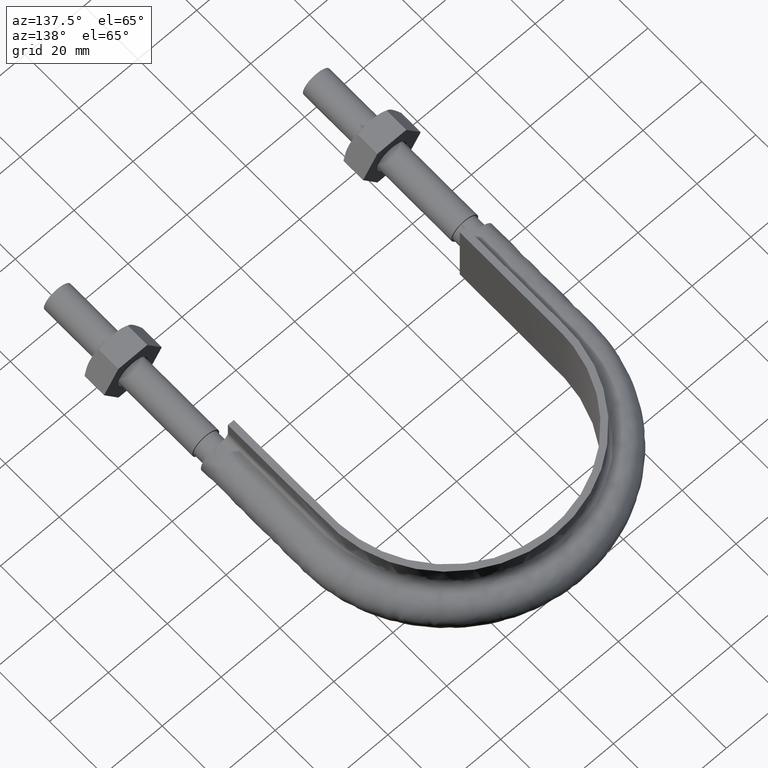
[diagram: clean part render]
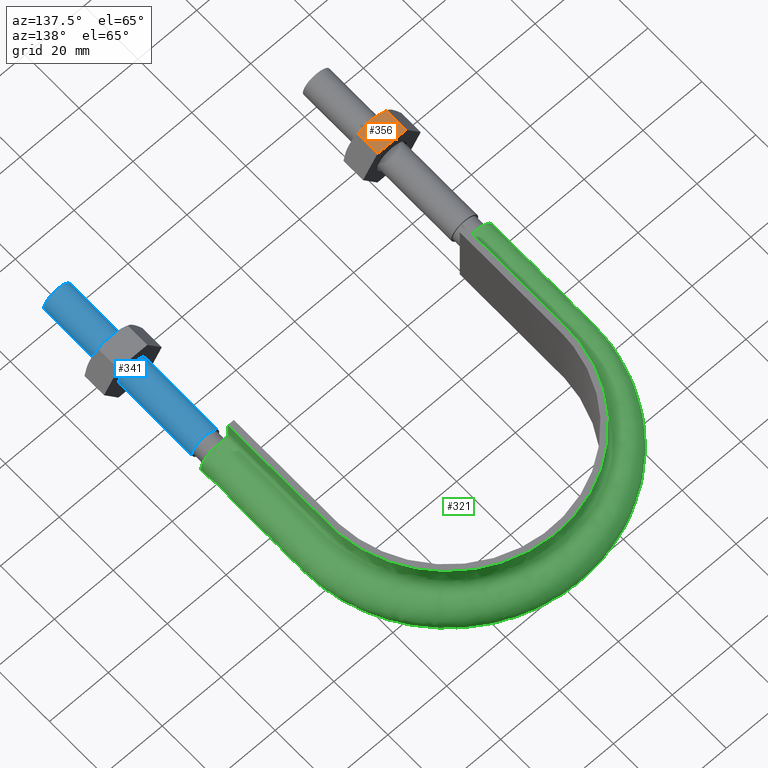
[diagram: same view with three faces highlighted in distinct colors, each labeled with its STEP entity id]
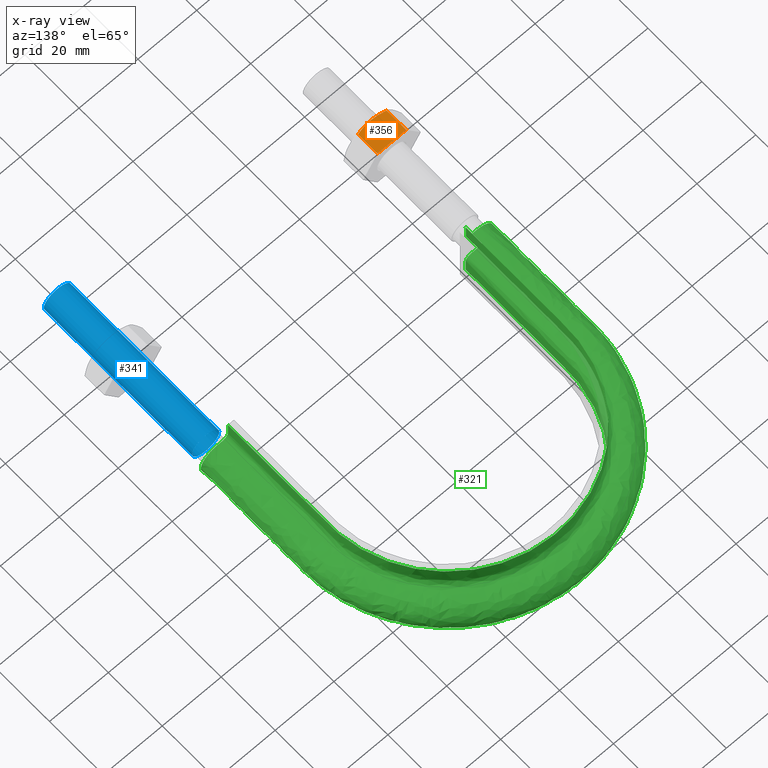
[diagram: x-ray of the same camera — body ghosted, the three highlighted faces saturated]
A machine part, auxiliary view with three faces highlighted in distinct colors.
The next image is the same camera in x-ray (body ghosted, the three faces saturated) — at least one of them is partly hidden behind the body in this view.
Their STEP definitions:

[orange] entity #356 — the highlighted planar face has unit normal (0, 0, -1).
#356 = ADVANCED_FACE( '', ( #484 ), #485, .F. );
#484 = FACE_OUTER_BOUND( '', #1483, .T. );
#485 = PLANE( '', #1484 );
#1483 = EDGE_LOOP( '', ( #1830, #1831, #1832, #1833, #1834 ) );
#1484 = AXIS2_PLACEMENT_3D( '', #1835, #1836, #1837 );
#1830 = ORIENTED_EDGE( '', *, *, #2168, .F. );
#1831 = ORIENTED_EDGE( '', *, *, #2189, .F. );
#1832 = ORIENTED_EDGE( '', *, *, #2190, .F. );
#1833 = ORIENTED_EDGE( '', *, *, #2191, .F. );
#1834 = ORIENTED_EDGE( '', *, *, #2175, .F. );
#1835 = CARTESIAN_POINT( '', ( -48.9074772881118, 28.0000000000000, 8.50000000000000 ) );
#1836 = DIRECTION( '', ( 1.11022302462516E-016, 6.12303176911189E-017, -1.00000000000000 ) );
#1837 = DIRECTION( '', ( 0.000000000000000, -1.00000000000000, -6.12303176911189E-017 ) );
#2168 = EDGE_CURVE( '', #2358, #2360, #2361, .T. );
#2175 = EDGE_CURVE( '', #2360, #2372, #2373, .T. );
#2189 = EDGE_CURVE( '', #2394, #2358, #2396, .T. );
#2190 = EDGE_CURVE( '', #2397, #2394, #2398, .F. );
#2191 = EDGE_CURVE( '', #2372, #2397, #2399, .T. );
#2358 = VERTEX_POINT( '', #2879 );
#2360 = VERTEX_POINT( '', #2881 );
#2361 = B_SPLINE_CURVE_WITH_KNOTS( '', 3, ( #2882, #2883, #2884, #2885, #2886, #2887 ), .UNSPECIFIED., .F., .F., ( 4, 2, 4 ), ( 0.000000000000000, 0.00246745482903606, 0.00493490965807212 ), .UNSPECIFIED. );
#2372 = VERTEX_POINT( '', #2911 );
#2373 = LINE( '', #2912, #2913 );
#2394 = VERTEX_POINT( '', #2953 );
#2396 = B_SPLINE_CURVE_WITH_KNOTS( '', 3, ( #2955, #2956, #2957, #2958, #2959, #2960 ), .UNSPECIFIED., .F., .F., ( 4, 2, 4 ), ( 6.93889390390723E-018, 0.00246745482903606, 0.00493490965807212 ), .UNSPECIFIED. );
#2397 = VERTEX_POINT( '', #2961 );
#2398 = LINE( '', #2962, #2963 );
#2399 = LINE( '', #2964, #2965 );
#2879 = CARTESIAN_POINT( '', ( -44.0000000000000, 20.0000000000000, 8.50000000000000 ) );
#2881 = CARTESIAN_POINT( '', ( -48.8774993593029, 20.7505553499465, 8.50000000000000 ) );
#2882 = CARTESIAN_POINT( '', ( -44.0000000000000, 20.0000000000000, 8.50000000000000 ) );
#2883 = CARTESIAN_POINT( '', ( -44.8321659501907, 20.0000000000000, 8.50000000000000 ) );
#2884 = CARTESIAN_POINT( '', ( -45.6533062476857, 20.0716504305290, 8.50000000000000 ) );
#2885 = CARTESIAN_POINT( '', ( -47.2774431756629, 20.3328582843707, 8.50000000000000 ) );
#2886 = CARTESIAN_POINT( '', ( -48.0805717066773, 20.5215585493657, 8.50000000000000 ) );
#2887 = CARTESIAN_POINT( '', ( -48.8774993593029, 20.7505553499465, 8.50000000000000 ) );
#2911 = CARTESIAN_POINT( '', ( -48.8774993593029, 28.0000000000000, 8.50000000000000 ) );
#2912 = CARTESIAN_POINT( '', ( -48.8774993593029, 28.0000000000000, 8.50000000000000 ) );
#2913 = VECTOR( '', #3267, 1000.00000000000 );
#2953 = CARTESIAN_POINT( '', ( -39.1225006406971, 20.7505553499465, 8.50000000000000 ) );
#2955 = CARTESIAN_POINT( '', ( -39.1225006406971, 20.7505553499465, 8.50000000000000 ) );
#2956 = CARTESIAN_POINT( '', ( -39.9194282933228, 20.5215585493657, 8.50000000000000 ) );
#2957 = CARTESIAN_POINT( '', ( -40.7225568243372, 20.3328582843707, 8.50000000000000 ) );
#2958 = CARTESIAN_POINT( '', ( -42.3466937523143, 20.0716504305290, 8.50000000000000 ) );
#2959 = CARTESIAN_POINT( '', ( -43.1678340498093, 20.0000000000000, 8.50000000000000 ) );
#2960 = CARTESIAN_POINT( '', ( -44.0000000000000, 20.0000000000000, 8.50000000000000 ) );
#2961 = CARTESIAN_POINT( '', ( -39.1225006406971, 28.0000000000000, 8.50000000000000 ) );
#2962 = CARTESIAN_POINT( '', ( -39.1225006406971, 28.0000000000000, 8.50000000000000 ) );
#2963 = VECTOR( '', #3290, 1000.00000000000 );
#2964 = CARTESIAN_POINT( '', ( -39.1000000000000, 28.0000000000000, 8.50000000000000 ) );
#2965 = VECTOR( '', #3291, 1000.00000000000 );
#3267 = DIRECTION( '', ( 2.44921270764475E-016, 1.00000000000000, 6.12303176911189E-017 ) );
#3290 = DIRECTION( '', ( 2.44921270764475E-016, 1.00000000000000, 6.12303176911189E-017 ) );
#3291 = DIRECTION( '', ( 1.00000000000000, -2.44921270764475E-016, 1.11022302462516E-016 ) );

[blue] entity #341 — the highlighted cylindrical surface (bore or boss wall) has radius 4.6 mm, axis along (0, 1, 0).
#341 = ADVANCED_FACE( '', ( #452, #453 ), #454, .T. );
#452 = FACE_OUTER_BOUND( '', #1451, .T. );
#453 = FACE_OUTER_BOUND( '', #1452, .T. );
#454 = CYLINDRICAL_SURFACE( '', #1453, 4.60000000000000 );
#1451 = EDGE_LOOP( '', ( #1739 ) );
#1452 = EDGE_LOOP( '', ( #1740 ) );
#1453 = AXIS2_PLACEMENT_3D( '', #1741, #1742, #1743 );
#1739 = ORIENTED_EDGE( '', *, *, #2155, .T. );
#1740 = ORIENTED_EDGE( '', *, *, #2156, .F. );
#1741 = CARTESIAN_POINT( '', ( 44.0000000000000, 55.0000000000000, 3.39828263185710E-015 ) );
#1742 = DIRECTION( '', ( 2.44921270764475E-016, 1.00000000000000, 6.12303176911189E-017 ) );
#1743 = DIRECTION( '', ( 1.00000000000000, -2.44921270764475E-016, -7.49830360911069E-033 ) );
#2155 = EDGE_CURVE( '', #2333, #2333, #2334, .T. );
#2156 = EDGE_CURVE( '', #2335, #2335, #2336, .T. );
#2333 = VERTEX_POINT( '', #2842 );
#2334 = CIRCLE( '', #2843, 4.60000000000000 );
#2335 = VERTEX_POINT( '', #2844 );
#2336 = CIRCLE( '', #2845, 4.60000000000000 );
#2842 = CARTESIAN_POINT( '', ( 48.6000000000000, 55.0000000000000, 3.39828263185710E-015 ) );
#2843 = AXIS2_PLACEMENT_3D( '', #3232, #3233, #3234 );
#2844 = CARTESIAN_POINT( '', ( 48.6000000000000, -1.19031737591535E-014, 3.06151588455591E-017 ) );
#2845 = AXIS2_PLACEMENT_3D( '', #3235, #3236, #3237 );
#3232 = CARTESIAN_POINT( '', ( 44.0000000000000, 55.0000000000000, 3.39828263185710E-015 ) );
#3233 = DIRECTION( '', ( -2.44921270764475E-016, -1.00000000000000, -6.12303176911189E-017 ) );
#3234 = DIRECTION( '', ( 1.00000000000000, -2.44921270764475E-016, -7.49830360911069E-033 ) );
#3235 = CARTESIAN_POINT( '', ( 44.0000000000000, -1.07765359136369E-014, 3.06151588455591E-017 ) );
#3236 = DIRECTION( '', ( -2.44921270764475E-016, -1.00000000000000, -6.12303176911189E-017 ) );
#3237 = DIRECTION( '', ( 1.00000000000000, -2.44921270764475E-016, -7.49830360911069E-033 ) );

[green] entity #321 — the highlighted face is a freeform B-spline surface patch.
#321 = ADVANCED_FACE( '', ( #409 ), #410, .F. );
#409 = FACE_OUTER_BOUND( '', #733, .T. );
#410 = B_SPLINE_SURFACE_WITH_KNOTS( '', 3, 3, ( ( #734, #735, #736, #737, #738, #739, #740, #741, #742, #743, #744, #745, #746, #747, #748, #749, #750 ), ( #751, #752, #753, #754, #755, #756, #757, #758, #759, #760, #761, #762, #763, #764, #765, #766, #767 ), ( #768, #769, #770, #771, #772, #773, #774, #775, #776, #777, #778, #779, #780, #781, #782, #783, #784 ), ( #785, #786, #787, #788, #789, #790, #791, #792, #793, #794, #795, #796, #797, #798, #799, #800, #801 ), ( #802, #803, #804, #805, #806, #807, #808, #809, #810, #811, #812, #813, #814, #815, #816, #817, #818 ), ( #819, #820, #821, #822, #823, #824, #825, #826, #827, #828, #829, #830, #831, #832, #833, #834, #835 ), ( #836, #837, #838, #839, #840, #841, #842, #843, #844, #845, #846, #847, #848, #849, #850, #851, #852 ), ( #853, #854, #855, #856, #857, #858, #859, #860, #861, #862, #863, #864, #865, #866, #867, #868, #869 ), ( #870, #871, #872, #873, #874, #875, #876, #877, #878, #879, #880, #881, #882, #883, #884, #885, #886 ), ( #887, #888, #889, #890, #891, #892, #893, #894, #895, #896, #897, #898, #899, #900, #901, #902, #903 ), ( #904, #905, #906, #907, #908, #909, #910, #911, #912, #913, #914, #915, #916, #917, #918, #919, #920 ), ( #921, #922, #923, #924, #925, #926, #927, #928, #929, #930, #931, #932, #933, #934, #935, #936, #937 ), ( #938, #939, #940, #941, #942, #943, #944, #945, #946, #947, #948, #949, #950, #951, #952, #953, #954 ), ( #955, #956, #957, #958, #959, #960, #961, #962, #963, #964, #965, #966, #967, #968, #969, #970, #971 ), ( #972, #973, #974, #975, #976, #977, #978, #979, #980, #981, #982, #983, #984, #985, #986, #987, #988 ), ( #989, #990, #991, #992, #993, #994, #995, #996, #997, #998, #999, #1000, #1001, #1002, #1003, #1004, #1005 ), ( #1006, #1007, #1008, #1009, #1010, #1011, #1012, #1013, #1014, #1015, #1016, #1017, #1018, #1019, #1020, #1021, #1022 ), ( #1023, #1024, #1025, #1026, #1027, #1028, #1029, #1030, #1031, #1032, #1033, #1034, #1035, #1036, #1037, #1038, #1039 ), ( #1040, #1041, #1042, #1043, #1044, #1045, #1046, #1047, #1048, #1049, #1050, #1051, #1052, #1053, #1054, #1055, #1056 ), ( #1057, #1058, #1059, #1060, #1061, #1062, #1063, #1064, #1065, #1066, #1067, #1068, #1069, #1070, #1071, #1072, #1073 ), ( #1074, #1075, #1076, #1077, #1078, #1079, #1080, #1081, #1082, #1083, #1084, #1085, #1086, #1087, #1088, #1089, #1090 ), ( #1091, #1092, #1093, #1094, #1095, #1096, #1097, #1098, #1099, #1100, #1101, #1102, #1103, #1104, #1105, #1106, #1107 ), ( #1108, #1109, #1110, #1111, #1112, #1113, #1114, #1115, #1116, #1117, #1118, #1119, #1120, #1121, #1122, #1123, #1124 ), ( #1125, #1126, #1127, #1128, #1129, #1130, #1131, #1132, #1133, #1134, #1135, #1136, #1137, #1138, #1139, #1140, #1141 ), ( #1142, #1143, #1144, #1145, #1146, #1147, #1148, #1149, #1150, #1151, #1152, #1153, #1154, #1155, #1156, #1157, #1158 ), ( #1159, #1160, #1161, #1162, #1163, #1164, #1165, #1166, #1167, #1168, #1169, #1170, #1171, #1172, #1173, #1174, #1175 ), ( #1176, #1177, #1178, #1179, #1180, #1181, #1182, #1183, #1184, #1185, #1186, #1187, #1188, #1189, #1190, #1191, #1192 ), ( #1193, #1194, #1195, #1196, #1197, #1198, #1199, #1200, #1201, #1202, #1203, #1204, #1205, #1206, #1207, #1208, #1209 ), ( #1210, #1211, #1212, #1213, #1214, #1215, #1216, #1217, #1218, #1219, #1220, #1221, #1222, #1223, #1224, #1225, #1226 ), ( #1227, #1228, #1229, #1230, #1231, #1232, #1233, #1234, #1235, #1236, #1237, #1238, #1239, #1240, #1241, #1242, #1243 ), ( #1244, #1245, #1246, #1247, #1248, #1249, #1250, #1251, #1252, #1253, #1254, #1255, #1256, #1257, #1258, #1259, #1260 ) ), .UNSPECIFIED., .F., .F., .F., ( 4, 3, 1, 1, 1, 3, 3, 1, 1, 1, 3, 3, 1, 1, 1, 3, 4 ), ( 4, 3, 1, 1, 1, 1, 1, 1, 1, 3, 4 ), ( 0.105263157894737, 0.157894736842105, 0.210526315789474, 0.263157894736842, 0.315789473684211, 0.368421052631579, 0.421052631578947, 0.473684210526316, 0.526315789473684, 0.578947368421053, 0.631578947368421, 0.684210526315789, 0.736842105263158, 0.789473684210526, 0.842105263157895, 0.894736842105263, 0.947368421052632 ), ( 0.000000000000000, 1.00000000000000, 1.50000000000000, 2.00000000000000, 3.00000000000000, 4.00000000000000, 5.00000000000000, 6.00000000000000, 6.50000000000000, 7.00000000000000, 8.00000000000000 ), .UNSPECIFIED. );
#733 = EDGE_LOOP( '', ( #1621, #1622, #1623, #1624 ) );
#734 = CARTESIAN_POINT( '', ( -40.4000000000000, 56.5000000000000, 12.5000000000000 ) );
#735 = CARTESIAN_POINT( '', ( -40.4000000000000, 69.8666666666667, 12.5000000000000 ) );
#736 = CARTESIAN_POINT( '', ( -40.4000000000000, 83.2333333333333, 12.5000000000000 ) );
#737 = CARTESIAN_POINT( '', ( -40.4000000000000, 96.6000000000000, 12.5000000000000 ) );
#738 = CARTESIAN_POINT( '', ( -40.4000000000000, 100.116528833197, 12.5000000000000 ) );
#739 = CARTESIAN_POINT( '', ( -39.4544182095027, 107.175179019489, 12.5000000000000 ) );
#740 = CARTESIAN_POINT( '', ( -34.0439198137652, 120.322280291266, 12.5000000000000 ) );
#741 = CARTESIAN_POINT( '', ( -21.1440253219688, 133.223582281160, 12.5000000000000 ) );
#742 = CARTESIAN_POINT( '', ( 3.17534878498284E-014, 138.888208859420, 12.5000000000000 ) );
#743 = CARTESIAN_POINT( '', ( 21.1440253219689, 133.223582281160, 12.5000000000000 ) );
#744 = CARTESIAN_POINT( '', ( 34.0439198137653, 120.322280291266, 12.5000000000000 ) );
#745 = CARTESIAN_POINT( '', ( 39.4544182095027, 107.175179019489, 12.5000000000000 ) );
#746 = CARTESIAN_POINT( '', ( 40.4000000000000, 100.116528833197, 12.5000000000000 ) );
#747 = CARTESIAN_POINT( '', ( 40.4000000000000, 96.6000000000000, 12.5000000000000 ) );
#748 = CARTESIAN_POINT( '', ( 40.4000000000000, 83.2333333333333, 12.5000000000000 ) );
#749 = CARTESIAN_POINT( '', ( 40.4000000000000, 69.8666666666667, 12.5000000000000 ) );
#750 = CARTESIAN_POINT( '', ( 40.4000000000000, 56.5000000000000, 12.5000000000000 ) );
#751 = CARTESIAN_POINT( '', ( -40.4000000000000, 56.5000000000000, 10.8666666666667 ) );
#752 = CARTESIAN_POINT( '', ( -40.4000000000000, 69.8666666666667, 10.8666666666667 ) );
#753 = CARTESIAN_POINT( '', ( -40.4000000000000, 83.2333333333333, 10.8666666666667 ) );
#754 = CARTESIAN_POINT( '', ( -40.4000000000000, 96.6000000000000, 10.8666666666667 ) );
#755 = CARTESIAN_POINT( '', ( -40.4000000000000, 100.116528833197, 10.8666666666667 ) );
#756 = CARTESIAN_POINT( '', ( -39.4544182095027, 107.175179019489, 10.8666666666666 ) );
#757 = CARTESIAN_POINT( '', ( -34.0439198137652, 120.322280291266, 10.8666666666667 ) );
#758 = CARTESIAN_POINT( '', ( -21.1440253219688, 133.223582281160, 10.8666666666667 ) );
#759 = CARTESIAN_POINT( '', ( 3.17534878498284E-014, 138.888208859420, 10.8666666666667 ) );
#760 = CARTESIAN_POINT( '', ( 21.1440253219689, 133.223582281160, 10.8666666666667 ) );
#761 = CARTESIAN_POINT( '', ( 34.0439198137653, 120.322280291266, 10.8666666666667 ) );
#762 = CARTESIAN_POINT( '', ( 39.4544182095027, 107.175179019489, 10.8666666666666 ) );
#763 = CARTESIAN_POINT( '', ( 40.4000000000000, 100.116528833197, 10.8666666666667 ) );
#764 = CARTESIAN_POINT( '', ( 40.4000000000000, 96.6000000000000, 10.8666666666667 ) );
#765 = CARTESIAN_POINT( '', ( 40.4000000000000, 83.2333333333333, 10.8666666666667 ) );
#766 = CARTESIAN_POINT( '', ( 40.4000000000000, 69.8666666666667, 10.8666666666667 ) );
#767 = CARTESIAN_POINT( '', ( 40.4000000000000, 56.5000000000000, 10.8666666666667 ) );
#768 = CARTESIAN_POINT( '', ( -40.4000000000000, 56.5000000000000, 9.23333333333332 ) );
#769 = CARTESIAN_POINT( '', ( -40.4000000000000, 69.8666666666667, 9.23333333333332 ) );
#770 = CARTESIAN_POINT( '', ( -40.4000000000000, 83.2333333333333, 9.23333333333332 ) );
#771 = CARTESIAN_POINT( '', ( -40.4000000000000, 96.6000000000000, 9.23333333333332 ) );
#772 = CARTESIAN_POINT( '', ( -40.4000000000000, 100.116528833197, 9.23333333333332 ) );
#773 = CARTESIAN_POINT( '', ( -39.4544182095027, 107.175179019489, 9.23333333333331 ) );
#774 = CARTESIAN_POINT( '', ( -34.0439198137652, 120.322280291266, 9.23333333333333 ) );
#775 = CARTESIAN_POINT( '', ( -21.1440253219688, 133.223582281160, 9.23333333333332 ) );
#776 = CARTESIAN_POINT( '', ( 3.17534878498284E-014, 138.888208859420, 9.23333333333332 ) );
#777 = CARTESIAN_POINT( '', ( 21.1440253219689, 133.223582281160, 9.23333333333332 ) );
#778 = CARTESIAN_POINT( '', ( 34.0439198137653, 120.322280291266, 9.23333333333332 ) );
#779 = CARTESIAN_POINT( '', ( 39.4544182095027, 107.175179019489, 9.23333333333331 ) );
#780 = CARTESIAN_POINT( '', ( 40.4000000000000, 100.116528833197, 9.23333333333332 ) );
#781 = CARTESIAN_POINT( '', ( 40.4000000000000, 96.6000000000000, 9.23333333333332 ) );
#782 = CARTESIAN_POINT( '', ( 40.4000000000000, 83.2333333333333, 9.23333333333332 ) );
#783 = CARTESIAN_POINT( '', ( 40.4000000000000, 69.8666666666667, 9.23333333333332 ) );
#784 = CARTESIAN_POINT( '', ( 40.4000000000000, 56.5000000000000, 9.23333333333332 ) );
#785 = CARTESIAN_POINT( '', ( -40.4000000000000, 56.5000000000000, 7.59999999999998 ) );
#786 = CARTESIAN_POINT( '', ( -40.4000000000000, 69.8666666666667, 7.59999999999998 ) );
#787 = CARTESIAN_POINT( '', ( -40.4000000000000, 83.2333333333333, 7.59999999999998 ) );
#788 = CARTESIAN_POINT( '', ( -40.4000000000000, 96.6000000000000, 7.59999999999998 ) );
#789 = CARTESIAN_POINT( '', ( -40.4000000000000, 100.116528833197, 7.59999999999998 ) );
#790 = CARTESIAN_POINT( '', ( -39.4544182095027, 107.175179019489, 7.59999999999997 ) );
#791 = CARTESIAN_POINT( '', ( -34.0439198137652, 120.322280291266, 7.59999999999999 ) );
#792 = CARTESIAN_POINT( '', ( -21.1440253219688, 133.223582281160, 7.59999999999998 ) );
#793 = CARTESIAN_POINT( '', ( 3.34882113258052E-014, 138.888208859420, 7.59999999999998 ) );
#794 = CARTESIAN_POINT( '', ( 21.1440253219689, 133.223582281160, 7.59999999999998 ) );
#795 = CARTESIAN_POINT( '', ( 34.0439198137653, 120.322280291266, 7.59999999999999 ) );
#796 = CARTESIAN_POINT( '', ( 39.4544182095027, 107.175179019489, 7.59999999999997 ) );
#797 = CARTESIAN_POINT( '', ( 40.4000000000000, 100.116528833197, 7.59999999999998 ) );
#798 = CARTESIAN_POINT( '', ( 40.4000000000000, 96.6000000000000, 7.59999999999998 ) );
#799 = CARTESIAN_POINT( '', ( 40.4000000000000, 83.2333333333333, 7.59999999999998 ) );
#800 = CARTESIAN_POINT( '', ( 40.4000000000000, 69.8666666666667, 7.59999999999998 ) );
#801 = CARTESIAN_POINT( '', ( 40.4000000000000, 56.5000000000000, 7.59999999999998 ) );
#802 = CARTESIAN_POINT( '', ( -40.4000000000000, 56.5000000000000, 7.33823584172332 ) );
#803 = CARTESIAN_POINT( '', ( -40.4000000000000, 69.8666666666667, 7.33823584172332 ) );
#804 = CARTESIAN_POINT( '', ( -40.4000000000000, 83.2333333333333, 7.33823584172332 ) );
#805 = CARTESIAN_POINT( '', ( -40.4000000000000, 96.6000000000000, 7.33823584172332 ) );
#806 = CARTESIAN_POINT( '', ( -40.4000000000000, 100.116528833197, 7.33823584172332 ) );
#807 = CARTESIAN_POINT( '', ( -39.4544182095027, 107.175179019489, 7.33823584172331 ) );
#808 = CARTESIAN_POINT( '', ( -34.0439198137652, 120.322280291266, 7.33823584172332 ) );
#809 = CARTESIAN_POINT( '', ( -21.1440253219688, 133.223582281160, 7.33823584172331 ) );
#810 = CARTESIAN_POINT( '', ( 3.17534878498284E-014, 138.888208859420, 7.33823584172331 ) );
#811 = CARTESIAN_POINT( '', ( 21.1440253219689, 133.223582281160, 7.33823584172331 ) );
#812 = CARTESIAN_POINT( '', ( 34.0439198137653, 120.322280291266, 7.33823584172332 ) );
#813 = CARTESIAN_POINT( '', ( 39.4544182095027, 107.175179019489, 7.33823584172331 ) );
#814 = CARTESIAN_POINT( '', ( 40.4000000000000, 100.116528833197, 7.33823584172332 ) );
#815 = CARTESIAN_POINT( '', ( 40.4000000000000, 96.6000000000000, 7.33823584172332 ) );
#816 = CARTESIAN_POINT( '', ( 40.4000000000000, 83.2333333333333, 7.33823584172332 ) );
#817 = CARTESIAN_POINT( '', ( 40.4000000000000, 69.8666666666667, 7.33823584172332 ) );
#818 = CARTESIAN_POINT( '', ( 40.4000000000000, 56.5000000000000, 7.33823584172332 ) );
#819 = CARTESIAN_POINT( '', ( -40.5041362568359, 56.5000000000000, 6.81470752516999 ) );
#820 = CARTESIAN_POINT( '', ( -40.5041362568359, 69.8666666666667, 6.81470752516999 ) );
#821 = CARTESIAN_POINT( '', ( -40.5041362568359, 83.2333333333333, 6.81470752516999 ) );
#822 = CARTESIAN_POINT( '', ( -40.5041362568359, 96.6000000000000, 6.81470752516999 ) );
#823 = CARTESIAN_POINT( '', ( -40.5041362568359, 100.125829908504, 6.81470752516999 ) );
#824 = CARTESIAN_POINT( '', ( -39.5561585978603, 107.202341937292, 6.81470752516998 ) );
#825 = CARTESIAN_POINT( '', ( -34.1316485577521, 120.383483124071, 6.81470752516999 ) );
#826 = CARTESIAN_POINT( '', ( -21.1985343424224, 133.317964123169, 6.81470752516999 ) );
#827 = CARTESIAN_POINT( '', ( 3.26341994459140E-014, 138.997222323669, 6.81470752516999 ) );
#828 = CARTESIAN_POINT( '', ( 21.1985343424224, 133.317964123169, 6.81470752516999 ) );
#829 = CARTESIAN_POINT( '', ( 34.1316485577522, 120.383483124071, 6.81470752516999 ) );
#830 = CARTESIAN_POINT( '', ( 39.5561585978604, 107.202341937292, 6.81470752516998 ) );
#831 = CARTESIAN_POINT( '', ( 40.5041362568359, 100.125829908504, 6.81470752516999 ) );
#832 = CARTESIAN_POINT( '', ( 40.5041362568359, 96.6000000000000, 6.81470752516999 ) );
#833 = CARTESIAN_POINT( '', ( 40.5041362568359, 83.2333333333333, 6.81470752516999 ) );
#834 = CARTESIAN_POINT( '', ( 40.5041362568359, 69.8666666666667, 6.81470752516999 ) );
#835 = CARTESIAN_POINT( '', ( 40.5041362568359, 56.5000000000000, 6.81470752516999 ) );
#836 = CARTESIAN_POINT( '', ( -40.9489687109389, 56.5000000000000, 6.14896871093886 ) );
#837 = CARTESIAN_POINT( '', ( -40.9489687109389, 69.8666666666667, 6.14896871093886 ) );
#838 = CARTESIAN_POINT( '', ( -40.9489687109389, 83.2333333333333, 6.14896871093886 ) );
#839 = CARTESIAN_POINT( '', ( -40.9489687109389, 96.6000000000000, 6.14896871093886 ) );
#840 = CARTESIAN_POINT( '', ( -40.9489687109389, 100.165560740786, 6.14896871093886 ) );
#841 = CARTESIAN_POINT( '', ( -39.9907567676970, 107.318372105405, 6.14896871093885 ) );
#842 = CARTESIAN_POINT( '', ( -34.5063940466797, 120.644919506957, 6.14896871093886 ) );
#843 = CARTESIAN_POINT( '', ( -21.4313771781055, 133.721129242402, 6.14896871093885 ) );
#844 = CARTESIAN_POINT( '', ( 3.18238634770451E-014, 139.462888445207, 6.14896871093886 ) );
#845 = CARTESIAN_POINT( '', ( 21.4313771781055, 133.721129242402, 6.14896871093885 ) );
#846 = CARTESIAN_POINT( '', ( 34.5063940466797, 120.644919506957, 6.14896871093886 ) );
#847 = CARTESIAN_POINT( '', ( 39.9907567676970, 107.318372105405, 6.14896871093885 ) );
#848 = CARTESIAN_POINT( '', ( 40.9489687109389, 100.165560740786, 6.14896871093886 ) );
#849 = CARTESIAN_POINT( '', ( 40.9489687109389, 96.6000000000000, 6.14896871093886 ) );
#850 = CARTESIAN_POINT( '', ( 40.9489687109389, 83.2333333333333, 6.14896871093886 ) );
#851 = CARTESIAN_POINT( '', ( 40.9489687109389, 69.8666666666667, 6.14896871093886 ) );
#852 = CARTESIAN_POINT( '', ( 40.9489687109389, 56.5000000000000, 6.14896871093886 ) );
#853 = CARTESIAN_POINT( '', ( -41.6147075251700, 56.5000000000000, 5.70413625683589 ) );
#854 = CARTESIAN_POINT( '', ( -41.6147075251700, 69.8666666666667, 5.70413625683589 ) );
#855 = CARTESIAN_POINT( '', ( -41.6147075251700, 83.2333333333333, 5.70413625683589 ) );
#856 = CARTESIAN_POINT( '', ( -41.6147075251700, 96.6000000000000, 5.70413625683589 ) );
#857 = CARTESIAN_POINT( '', ( -41.6147075251700, 100.225022133333, 5.70413625683589 ) );
#858 = CARTESIAN_POINT( '', ( -40.6411788931184, 107.492023523646, 5.70413625683588 ) );
#859 = CARTESIAN_POINT( '', ( -35.0672403049415, 121.036186704155, 5.70413625683589 ) );
#860 = CARTESIAN_POINT( '', ( -21.7798511077842, 134.324508483151, 5.70413625683588 ) );
#861 = CARTESIAN_POINT( '', ( 3.10418468337414E-014, 140.159807046179, 5.70413625683589 ) );
#862 = CARTESIAN_POINT( '', ( 21.7798511077843, 134.324508483151, 5.70413625683588 ) );
#863 = CARTESIAN_POINT( '', ( 35.0672403049415, 121.036186704155, 5.70413625683589 ) );
#864 = CARTESIAN_POINT( '', ( 40.6411788931185, 107.492023523646, 5.70413625683588 ) );
#865 = CARTESIAN_POINT( '', ( 41.6147075251700, 100.225022133333, 5.70413625683589 ) );
#866 = CARTESIAN_POINT( '', ( 41.6147075251700, 96.6000000000000, 5.70413625683589 ) );
#867 = CARTESIAN_POINT( '', ( 41.6147075251700, 83.2333333333333, 5.70413625683589 ) );
#868 = CARTESIAN_POINT( '', ( 41.6147075251700, 69.8666666666667, 5.70413625683589 ) );
#869 = CARTESIAN_POINT( '', ( 41.6147075251700, 56.5000000000000, 5.70413625683589 ) );
#870 = CARTESIAN_POINT( '', ( -42.1382358417233, 56.5000000000000, 5.59999999999998 ) );
#871 = CARTESIAN_POINT( '', ( -42.1382358417233, 69.8666666666667, 5.59999999999998 ) );
#872 = CARTESIAN_POINT( '', ( -42.1382358417233, 83.2333333333333, 5.59999999999998 ) );
#873 = CARTESIAN_POINT( '', ( -42.1382358417233, 96.6000000000000, 5.59999999999998 ) );
#874 = CARTESIAN_POINT( '', ( -42.1382358417233, 100.271781796545, 5.59999999999998 ) );
#875 = CARTESIAN_POINT( '', ( -41.1526623654531, 107.628580733042, 5.59999999999997 ) );
#876 = CARTESIAN_POINT( '', ( -35.5082824841813, 121.343874122543, 5.59999999999998 ) );
#877 = CARTESIAN_POINT( '', ( -22.0538864589874, 134.798998044823, 5.59999999999998 ) );
#878 = CARTESIAN_POINT( '', ( 3.11089611025677E-014, 140.707854740173, 5.59999999999998 ) );
#879 = CARTESIAN_POINT( '', ( 22.0538864589875, 134.798998044823, 5.59999999999997 ) );
#880 = CARTESIAN_POINT( '', ( 35.5082824841814, 121.343874122543, 5.59999999999998 ) );
#881 = CARTESIAN_POINT( '', ( 41.1526623654532, 107.628580733042, 5.59999999999997 ) );
#882 = CARTESIAN_POINT( '', ( 42.1382358417234, 100.271781796545, 5.59999999999998 ) );
#883 = CARTESIAN_POINT( '', ( 42.1382358417234, 96.6000000000000, 5.59999999999998 ) );
#884 = CARTESIAN_POINT( '', ( 42.1382358417233, 83.2333333333333, 5.59999999999998 ) );
#885 = CARTESIAN_POINT( '', ( 42.1382358417233, 69.8666666666667, 5.59999999999998 ) );
#886 = CARTESIAN_POINT( '', ( 42.1382358417233, 56.5000000000000, 5.59999999999998 ) );
#887 = CARTESIAN_POINT( '', ( -42.4000000000000, 56.5000000000000, 5.59999999999998 ) );
#888 = CARTESIAN_POINT( '', ( -42.4000000000000, 69.8666666666667, 5.59999999999998 ) );
#889 = CARTESIAN_POINT( '', ( -42.4000000000000, 83.2333333333333, 5.59999999999998 ) );
#890 = CARTESIAN_POINT( '', ( -42.4000000000000, 96.6000000000000, 5.59999999999998 ) );
#891 = CARTESIAN_POINT( '', ( -42.4000000000000, 100.295161628151, 5.59999999999998 ) );
#892 = CARTESIAN_POINT( '', ( -41.4084041016205, 107.696859337741, 5.59999999999997 ) );
#893 = CARTESIAN_POINT( '', ( -35.7288035738012, 121.497717831737, 5.59999999999998 ) );
#894 = CARTESIAN_POINT( '', ( -22.1909041345891, 135.036242825660, 5.59999999999998 ) );
#895 = CARTESIAN_POINT( '', ( 3.11425182369808E-014, 140.981878587170, 5.59999999999998 ) );
#896 = CARTESIAN_POINT( '', ( 22.1909041345891, 135.036242825659, 5.59999999999997 ) );
#897 = CARTESIAN_POINT( '', ( 35.7288035738013, 121.497717831737, 5.59999999999998 ) );
#898 = CARTESIAN_POINT( '', ( 41.4084041016205, 107.696859337741, 5.59999999999997 ) );
#899 = CARTESIAN_POINT( '', ( 42.4000000000000, 100.295161628151, 5.59999999999998 ) );
#900 = CARTESIAN_POINT( '', ( 42.4000000000000, 96.6000000000000, 5.59999999999998 ) );
#901 = CARTESIAN_POINT( '', ( 42.4000000000000, 83.2333333333333, 5.59999999999998 ) );
#902 = CARTESIAN_POINT( '', ( 42.4000000000000, 69.8666666666667, 5.59999999999998 ) );
#903 = CARTESIAN_POINT( '', ( 42.4000000000000, 56.5000000000000, 5.59999999999998 ) );
#904 = CARTESIAN_POINT( '', ( -42.9333333333333, 56.5000000000000, 5.60000000000000 ) );
#905 = CARTESIAN_POINT( '', ( -42.9333333333333, 69.8666666666667, 5.60000000000000 ) );
#906 = CARTESIAN_POINT( '', ( -42.9333333333333, 83.2333333333333, 5.60000000000000 ) );
#907 = CARTESIAN_POINT( '', ( -42.9333333333333, 96.6000000000000, 5.60000000000000 ) );
#908 = CARTESIAN_POINT( '', ( -42.9333333333333, 100.342797040139, 5.60000000000000 ) );
#909 = CARTESIAN_POINT( '', ( -41.9294670061852, 107.835974089275, 5.59999999999999 ) );
#910 = CARTESIAN_POINT( '', ( -36.1781059098108, 121.811167842530, 5.60000000000001 ) );
#911 = CARTESIAN_POINT( '', ( -22.4700718179544, 135.519618970859, 5.60000000000000 ) );
#912 = CARTESIAN_POINT( '', ( 3.29456129463285E-014, 141.540190514570, 5.60000000000000 ) );
#913 = CARTESIAN_POINT( '', ( 22.4700718179545, 135.519618970859, 5.60000000000000 ) );
#914 = CARTESIAN_POINT( '', ( 36.1781059098109, 121.811167842530, 5.60000000000000 ) );
#915 = CARTESIAN_POINT( '', ( 41.9294670061853, 107.835974089275, 5.60000000000000 ) );
#916 = CARTESIAN_POINT( '', ( 42.9333333333334, 100.342797040139, 5.60000000000000 ) );
#917 = CARTESIAN_POINT( '', ( 42.9333333333334, 96.6000000000000, 5.60000000000000 ) );
#918 = CARTESIAN_POINT( '', ( 42.9333333333333, 83.2333333333333, 5.60000000000000 ) );
#919 = CARTESIAN_POINT( '', ( 42.9333333333333, 69.8666666666667, 5.60000000000000 ) );
#920 = CARTESIAN_POINT( '', ( 42.9333333333333, 56.5000000000000, 5.60000000000000 ) );
#921 = CARTESIAN_POINT( '', ( -43.4666666666666, 56.5000000000000, 5.60000000000000 ) );
#922 = CARTESIAN_POINT( '', ( -43.4666666666666, 69.8666666666667, 5.60000000000000 ) );
#923 = CARTESIAN_POINT( '', ( -43.4666666666666, 83.2333333333333, 5.60000000000000 ) );
#924 = CARTESIAN_POINT( '', ( -43.4666666666666, 96.6000000000000, 5.60000000000000 ) );
#925 = CARTESIAN_POINT( '', ( -43.4666666666666, 100.390432452126, 5.60000000000000 ) );
#926 = CARTESIAN_POINT( '', ( -42.4505299107500, 107.975088840809, 5.59999999999999 ) );
#927 = CARTESIAN_POINT( '', ( -36.6274082458204, 122.124617853322, 5.60000000000001 ) );
#928 = CARTESIAN_POINT( '', ( -22.7492395013198, 136.002995116059, 5.60000000000000 ) );
#929 = CARTESIAN_POINT( '', ( 2.95445372277458E-014, 142.098502441970, 5.60000000000000 ) );
#930 = CARTESIAN_POINT( '', ( 22.7492395013199, 136.002995116059, 5.60000000000000 ) );
#931 = CARTESIAN_POINT( '', ( 36.6274082458205, 122.124617853322, 5.60000000000000 ) );
#932 = CARTESIAN_POINT( '', ( 42.4505299107500, 107.975088840809, 5.60000000000000 ) );
#933 = CARTESIAN_POINT( '', ( 43.4666666666667, 100.390432452126, 5.60000000000000 ) );
#934 = CARTESIAN_POINT( '', ( 43.4666666666667, 96.6000000000000, 5.60000000000000 ) );
#935 = CARTESIAN_POINT( '', ( 43.4666666666667, 83.2333333333333, 5.60000000000000 ) );
#936 = CARTESIAN_POINT( '', ( 43.4666666666667, 69.8666666666667, 5.60000000000000 ) );
#937 = CARTESIAN_POINT( '', ( 43.4666666666667, 56.5000000000000, 5.60000000000000 ) );
#938 = CARTESIAN_POINT( '', ( -44.0000000000000, 56.5000000000000, 5.60000000000000 ) );
#939 = CARTESIAN_POINT( '', ( -44.0000000000000, 69.8666666666667, 5.60000000000000 ) );
#940 = CARTESIAN_POINT( '', ( -44.0000000000000, 83.2333333333333, 5.60000000000000 ) );
#941 = CARTESIAN_POINT( '', ( -44.0000000000000, 96.6000000000000, 5.60000000000000 ) );
#942 = CARTESIAN_POINT( '', ( -44.0000000000000, 100.438067864114, 5.60000000000000 ) );
#943 = CARTESIAN_POINT( '', ( -42.9715928153147, 108.114203592343, 5.59999999999999 ) );
#944 = CARTESIAN_POINT( '', ( -37.0767105818300, 122.438067864114, 5.60000000000001 ) );
#945 = CARTESIAN_POINT( '', ( -23.0284071846852, 136.486371261259, 5.60000000000000 ) );
#946 = CARTESIAN_POINT( '', ( 3.13476319370935E-014, 142.656814369370, 5.60000000000000 ) );
#947 = CARTESIAN_POINT( '', ( 23.0284071846853, 136.486371261259, 5.60000000000000 ) );
#948 = CARTESIAN_POINT( '', ( 37.0767105818301, 122.438067864114, 5.60000000000000 ) );
#949 = CARTESIAN_POINT( '', ( 42.9715928153148, 108.114203592343, 5.60000000000000 ) );
#950 = CARTESIAN_POINT( '', ( 44.0000000000000, 100.438067864114, 5.60000000000000 ) );
#951 = CARTESIAN_POINT( '', ( 44.0000000000000, 96.6000000000000, 5.60000000000000 ) );
#952 = CARTESIAN_POINT( '', ( 44.0000000000000, 83.2333333333333, 5.60000000000000 ) );
#953 = CARTESIAN_POINT( '', ( 44.0000000000000, 69.8666666666667, 5.60000000000000 ) );
#954 = CARTESIAN_POINT( '', ( 44.0000000000000, 56.5000000000000, 5.60000000000000 ) );
#955 = CARTESIAN_POINT( '', ( -45.4627416997969, 56.5000000000000, 5.60000000000000 ) );
#956 = CARTESIAN_POINT( '', ( -45.4627416997969, 69.8666666666667, 5.60000000000000 ) );
#957 = CARTESIAN_POINT( '', ( -45.4627416997969, 83.2333333333333, 5.60000000000000 ) );
#958 = CARTESIAN_POINT( '', ( -45.4627416997969, 96.6000000000000, 5.60000000000000 ) );
#959 = CARTESIAN_POINT( '', ( -45.4627416997969, 100.568714683179, 5.60000000000000 ) );
#960 = CARTESIAN_POINT( '', ( -44.4006811379226, 108.495745370078, 5.60000000000000 ) );
#961 = CARTESIAN_POINT( '', ( -38.3089854493877, 123.297748617091, 5.60000000000001 ) );
#962 = CARTESIAN_POINT( '', ( -23.7940638316120, 137.812098344267, 5.60000000000000 ) );
#963 = CARTESIAN_POINT( '', ( 2.98004261875882E-014, 144.188063377562, 5.60000000000000 ) );
#964 = CARTESIAN_POINT( '', ( 23.7940638316120, 137.812098344267, 5.60000000000000 ) );
#965 = CARTESIAN_POINT( '', ( 38.3089854493877, 123.297748617091, 5.60000000000001 ) );
#966 = CARTESIAN_POINT( '', ( 44.4006811379226, 108.495745370078, 5.60000000000000 ) );
#967 = CARTESIAN_POINT( '', ( 45.4627416997970, 100.568714683179, 5.60000000000000 ) );
#968 = CARTESIAN_POINT( '', ( 45.4627416997970, 96.6000000000000, 5.60000000000000 ) );
#969 = CARTESIAN_POINT( '', ( 45.4627416997970, 83.2333333333333, 5.60000000000000 ) );
#970 = CARTESIAN_POINT( '', ( 45.4627416997970, 69.8666666666667, 5.60000000000000 ) );
#971 = CARTESIAN_POINT( '', ( 45.4627416997970, 56.5000000000000, 5.60000000000000 ) );
#972 = CARTESIAN_POINT( '', ( -48.3882250993908, 56.5000000000000, 4.38822509939086 ) );
#973 = CARTESIAN_POINT( '', ( -48.3882250993908, 69.8666666666667, 4.38822509939086 ) );
#974 = CARTESIAN_POINT( '', ( -48.3882250993908, 83.2333333333333, 4.38822509939086 ) );
#975 = CARTESIAN_POINT( '', ( -48.3882250993908, 96.6000000000000, 4.38822509939086 ) );
#976 = CARTESIAN_POINT( '', ( -48.3882250993908, 100.830008321310, 4.38822509939086 ) );
#977 = CARTESIAN_POINT( '', ( -47.2588577831383, 109.258828925549, 4.38822509939085 ) );
#978 = CARTESIAN_POINT( '', ( -40.7735351845030, 125.017110123045, 4.38822509939086 ) );
#979 = CARTESIAN_POINT( '', ( -25.3253771254655, 140.463552510283, 4.38822509939086 ) );
#980 = CARTESIAN_POINT( '', ( 2.93080999025429E-014, 147.250561393945, 4.38822509939086 ) );
#981 = CARTESIAN_POINT( '', ( 25.3253771254655, 140.463552510283, 4.38822509939086 ) );
#982 = CARTESIAN_POINT( '', ( 40.7735351845030, 125.017110123045, 4.38822509939086 ) );
#983 = CARTESIAN_POINT( '', ( 47.2588577831383, 109.258828925549, 4.38822509939086 ) );
#984 = CARTESIAN_POINT( '', ( 48.3882250993909, 100.830008321310, 4.38822509939086 ) );
#985 = CARTESIAN_POINT( '', ( 48.3882250993909, 96.6000000000000, 4.38822509939086 ) );
#986 = CARTESIAN_POINT( '', ( 48.3882250993909, 83.2333333333333, 4.38822509939086 ) );
#987 = CARTESIAN_POINT( '', ( 48.3882250993909, 69.8666666666667, 4.38822509939086 ) );
#988 = CARTESIAN_POINT( '', ( 48.3882250993909, 56.5000000000000, 4.38822509939086 ) );
#989 = CARTESIAN_POINT( '', ( -50.2058874503046, 56.5000000000000, 2.90303803946411E-015 ) );
#990 = CARTESIAN_POINT( '', ( -50.2058874503046, 69.8666666666667, 2.90303803946411E-015 ) );
#991 = CARTESIAN_POINT( '', ( -50.2058874503046, 83.2333333333333, 2.90303803946411E-015 ) );
#992 = CARTESIAN_POINT( '', ( -50.2058874503046, 96.6000000000000, 2.90303803946411E-015 ) );
#993 = CARTESIAN_POINT( '', ( -50.2058874503046, 100.992355374323, 2.90303803946411E-015 ) );
#994 = CARTESIAN_POINT( '', ( -49.0347010782978, 109.732948262399, 2.90303803946411E-015 ) );
#995 = CARTESIAN_POINT( '', ( -42.3048100726446, 126.085384404627, 2.90303803946412E-015 ) );
#996 = CARTESIAN_POINT( '', ( -26.2768132273000, 142.110954923645, 2.90303803946411E-015 ) );
#997 = CARTESIAN_POINT( '', ( 3.47452874869430E-014, 149.153353713635, 2.90303803946411E-015 ) );
#998 = CARTESIAN_POINT( '', ( 26.2768132273000, 142.110954923645, 2.90303803946411E-015 ) );
#999 = CARTESIAN_POINT( '', ( 42.3048100726447, 126.085384404627, 2.90303803946411E-015 ) );
#1000 = CARTESIAN_POINT( '', ( 49.0347010782979, 109.732948262399, 2.90303803946411E-015 ) );
#1001 = CARTESIAN_POINT( '', ( 50.2058874503046, 100.992355374323, 2.90303803946411E-015 ) );
#1002 = CARTESIAN_POINT( '', ( 50.2058874503046, 96.6000000000000, 2.90303803946411E-015 ) );
#1003 = CARTESIAN_POINT( '', ( 50.2058874503046, 83.2333333333333, 2.90303803946411E-015 ) );
#1004 = CARTESIAN_POINT( '', ( 50.2058874503046, 69.8666666666667, 2.90303803946411E-015 ) );
#1005 = CARTESIAN_POINT( '', ( 50.2058874503046, 56.5000000000000, 2.90303803946411E-015 ) );
#1006 = CARTESIAN_POINT( '', ( -48.3882250993908, 56.5000000000000, -4.38822509939085 ) );
#1007 = CARTESIAN_POINT( '', ( -48.3882250993908, 69.8666666666667, -4.38822509939085 ) );
#1008 = CARTESIAN_POINT( '', ( -48.3882250993908, 83.2333333333333, -4.38822509939085 ) );
#1009 = CARTESIAN_POINT( '', ( -48.3882250993908, 96.6000000000000, -4.38822509939085 ) );
#1010 = CARTESIAN_POINT( '', ( -48.3882250993908, 100.830008321310, -4.38822509939085 ) );
#1011 = CARTESIAN_POINT( '', ( -47.2588577831383, 109.258828925549, -4.38822509939085 ) );
#1012 = CARTESIAN_POINT( '', ( -40.7735351845030, 125.017110123045, -4.38822509939086 ) );
#1013 = CARTESIAN_POINT( '', ( -25.3253771254655, 140.463552510283, -4.38822509939085 ) );
#1014 = CARTESIAN_POINT( '', ( 2.93080999025429E-014, 147.250561393945, -4.38822509939085 ) );
#1015 = CARTESIAN_POINT( '', ( 25.3253771254655, 140.463552510283, -4.38822509939085 ) );
#1016 = CARTESIAN_POINT( '', ( 40.7735351845031, 125.017110123045, -4.38822509939086 ) );
#1017 = CARTESIAN_POINT( '', ( 47.2588577831383, 109.258828925549, -4.38822509939085 ) );
#1018 = CARTESIAN_POINT( '', ( 48.3882250993909, 100.830008321310, -4.38822509939085 ) );
#1019 = CARTESIAN_POINT( '', ( 48.3882250993909, 96.6000000000000, -4.38822509939085 ) );
#1020 = CARTESIAN_POINT( '', ( 48.3882250993909, 83.2333333333333, -4.38822509939085 ) );
#1021 = CARTESIAN_POINT( '', ( 48.3882250993909, 69.8666666666667, -4.38822509939085 ) );
#1022 = CARTESIAN_POINT( '', ( 48.3882250993909, 56.5000000000000, -4.38822509939085 ) );
#1023 = CARTESIAN_POINT( '', ( -45.4627416997969, 56.5000000000000, -5.60000000000000 ) );
#1024 = CARTESIAN_POINT( '', ( -45.4627416997969, 69.8666666666667, -5.60000000000000 ) );
#1025 = CARTESIAN_POINT( '', ( -45.4627416997969, 83.2333333333333, -5.60000000000000 ) );
#1026 = CARTESIAN_POINT( '', ( -45.4627416997969, 96.6000000000000, -5.60000000000000 ) );
#1027 = CARTESIAN_POINT( '', ( -45.4627416997969, 100.568714683179, -5.60000000000000 ) );
#1028 = CARTESIAN_POINT( '', ( -44.4006811379226, 108.495745370078, -5.59999999999999 ) );
#1029 = CARTESIAN_POINT( '', ( -38.3089854493877, 123.297748617091, -5.60000000000000 ) );
#1030 = CARTESIAN_POINT( '', ( -23.7940638316120, 137.812098344267, -5.60000000000000 ) );
#1031 = CARTESIAN_POINT( '', ( 2.98004261875882E-014, 144.188063377562, -5.60000000000000 ) );
#1032 = CARTESIAN_POINT( '', ( 23.7940638316120, 137.812098344267, -5.60000000000000 ) );
#1033 = CARTESIAN_POINT( '', ( 38.3089854493877, 123.297748617091, -5.60000000000000 ) );
#1034 = CARTESIAN_POINT( '', ( 44.4006811379226, 108.495745370078, -5.59999999999999 ) );
#1035 = CARTESIAN_POINT( '', ( 45.4627416997970, 100.568714683179, -5.60000000000000 ) );
#1036 = CARTESIAN_POINT( '', ( 45.4627416997970, 96.6000000000000, -5.60000000000000 ) );
#1037 = CARTESIAN_POINT( '', ( 45.4627416997970, 83.2333333333333, -5.60000000000000 ) );
#1038 = CARTESIAN_POINT( '', ( 45.4627416997970, 69.8666666666667, -5.60000000000000 ) );
#1039 = CARTESIAN_POINT( '', ( 45.4627416997970, 56.5000000000000, -5.60000000000000 ) );
#1040 = CARTESIAN_POINT( '', ( -44.0000000000000, 56.5000000000000, -5.60000000000000 ) );
#1041 = CARTESIAN_POINT( '', ( -44.0000000000000, 69.8666666666667, -5.60000000000000 ) );
#1042 = CARTESIAN_POINT( '', ( -44.0000000000000, 83.2333333333333, -5.60000000000000 ) );
#1043 = CARTESIAN_POINT( '', ( -44.0000000000000, 96.6000000000000, -5.60000000000000 ) );
#1044 = CARTESIAN_POINT( '', ( -44.0000000000000, 100.438067864114, -5.60000000000000 ) );
#1045 = CARTESIAN_POINT( '', ( -42.9715928153147, 108.114203592343, -5.59999999999999 ) );
#1046 = CARTESIAN_POINT( '', ( -37.0767105818300, 122.438067864114, -5.60000000000000 ) );
#1047 = CARTESIAN_POINT( '', ( -23.0284071846852, 136.486371261259, -5.60000000000000 ) );
#1048 = CARTESIAN_POINT( '', ( 2.96129084611167E-014, 142.656814369370, -5.60000000000000 ) );
#1049 = CARTESIAN_POINT( '', ( 23.0284071846853, 136.486371261259, -5.60000000000000 ) );
#1050 = CARTESIAN_POINT( '', ( 37.0767105818301, 122.438067864114, -5.60000000000000 ) );
#1051 = CARTESIAN_POINT( '', ( 42.9715928153148, 108.114203592343, -5.59999999999999 ) );
#1052 = CARTESIAN_POINT( '', ( 44.0000000000000, 100.438067864114, -5.60000000000000 ) );
#1053 = CARTESIAN_POINT( '', ( 44.0000000000000, 96.6000000000000, -5.60000000000000 ) );
#1054 = CARTESIAN_POINT( '', ( 44.0000000000000, 83.2333333333333, -5.60000000000000 ) );
#1055 = CARTESIAN_POINT( '', ( 44.0000000000000, 69.8666666666667, -5.60000000000000 ) );
#1056 = CARTESIAN_POINT( '', ( 44.0000000000000, 56.5000000000000, -5.60000000000000 ) );
#1057 = CARTESIAN_POINT( '', ( -43.4666666666666, 56.5000000000000, -5.60000000000000 ) );
#1058 = CARTESIAN_POINT( '', ( -43.4666666666666, 69.8666666666667, -5.60000000000000 ) );
#1059 = CARTESIAN_POINT( '', ( -43.4666666666666, 83.2333333333333, -5.60000000000000 ) );
#1060 = CARTESIAN_POINT( '', ( -43.4666666666666, 96.6000000000000, -5.60000000000000 ) );
#1061 = CARTESIAN_POINT( '', ( -43.4666666666666, 100.390432452126, -5.60000000000000 ) );
#1062 = CARTESIAN_POINT( '', ( -42.4505299107500, 107.975088840809, -5.59999999999999 ) );
#1063 = CARTESIAN_POINT( '', ( -36.6274082458204, 122.124617853322, -5.60000000000000 ) );
#1064 = CARTESIAN_POINT( '', ( -22.7492395013198, 136.002995116059, -5.60000000000000 ) );
#1065 = CARTESIAN_POINT( '', ( 2.95445372277458E-014, 142.098502441970, -5.60000000000000 ) );
#1066 = CARTESIAN_POINT( '', ( 22.7492395013199, 136.002995116059, -5.60000000000000 ) );
#1067 = CARTESIAN_POINT( '', ( 36.6274082458205, 122.124617853322, -5.60000000000000 ) );
#1068 = CARTESIAN_POINT( '', ( 42.4505299107500, 107.975088840809, -5.59999999999999 ) );
#1069 = CARTESIAN_POINT( '', ( 43.4666666666667, 100.390432452126, -5.60000000000000 ) );
#1070 = CARTESIAN_POINT( '', ( 43.4666666666667, 96.6000000000000, -5.60000000000000 ) );
#1071 = CARTESIAN_POINT( '', ( 43.4666666666667, 83.2333333333333, -5.60000000000000 ) );
#1072 = CARTESIAN_POINT( '', ( 43.4666666666667, 69.8666666666667, -5.60000000000000 ) );
#1073 = CARTESIAN_POINT( '', ( 43.4666666666667, 56.5000000000000, -5.60000000000000 ) );
#1074 = CARTESIAN_POINT( '', ( -42.9333333333333, 56.5000000000000, -5.60000000000000 ) );
#1075 = CARTESIAN_POINT( '', ( -42.9333333333333, 69.8666666666667, -5.60000000000000 ) );
#1076 = CARTESIAN_POINT( '', ( -42.9333333333333, 83.2333333333333, -5.60000000000000 ) );
#1077 = CARTESIAN_POINT( '', ( -42.9333333333333, 96.6000000000000, -5.60000000000000 ) );
#1078 = CARTESIAN_POINT( '', ( -42.9333333333333, 100.342797040139, -5.60000000000000 ) );
#1079 = CARTESIAN_POINT( '', ( -41.9294670061852, 107.835974089275, -5.59999999999999 ) );
#1080 = CARTESIAN_POINT( '', ( -36.1781059098108, 121.811167842530, -5.60000000000000 ) );
#1081 = CARTESIAN_POINT( '', ( -22.4700718179544, 135.519618970859, -5.60000000000000 ) );
#1082 = CARTESIAN_POINT( '', ( 3.29456129463285E-014, 141.540190514570, -5.60000000000000 ) );
#1083 = CARTESIAN_POINT( '', ( 22.4700718179545, 135.519618970859, -5.60000000000000 ) );
#1084 = CARTESIAN_POINT( '', ( 36.1781059098109, 121.811167842530, -5.60000000000000 ) );
#1085 = CARTESIAN_POINT( '', ( 41.9294670061853, 107.835974089275, -5.59999999999999 ) );
#1086 = CARTESIAN_POINT( '', ( 42.9333333333334, 100.342797040139, -5.60000000000000 ) );
#1087 = CARTESIAN_POINT( '', ( 42.9333333333334, 96.6000000000000, -5.60000000000000 ) );
#1088 = CARTESIAN_POINT( '', ( 42.9333333333333, 83.2333333333333, -5.60000000000000 ) );
#1089 = CARTESIAN_POINT( '', ( 42.9333333333333, 69.8666666666667, -5.60000000000000 ) );
#1090 = CARTESIAN_POINT( '', ( 42.9333333333333, 56.5000000000000, -5.60000000000000 ) );
#1091 = CARTESIAN_POINT( '', ( -42.4000000000000, 56.5000000000000, -5.60000000000000 ) );
#1092 = CARTESIAN_POINT( '', ( -42.4000000000000, 69.8666666666667, -5.60000000000000 ) );
#1093 = CARTESIAN_POINT( '', ( -42.4000000000000, 83.2333333333333, -5.60000000000000 ) );
#1094 = CARTESIAN_POINT( '', ( -42.4000000000000, 96.6000000000000, -5.60000000000000 ) );
#1095 = CARTESIAN_POINT( '', ( -42.4000000000000, 100.295161628151, -5.60000000000000 ) );
#1096 = CARTESIAN_POINT( '', ( -41.4084041016205, 107.696859337741, -5.59999999999999 ) );
#1097 = CARTESIAN_POINT( '', ( -35.7288035738012, 121.497717831737, -5.60000000000000 ) );
#1098 = CARTESIAN_POINT( '', ( -22.1909041345890, 135.036242825660, -5.60000000000000 ) );
#1099 = CARTESIAN_POINT( '', ( 3.11425182369808E-014, 140.981878587170, -5.60000000000000 ) );
#1100 = CARTESIAN_POINT( '', ( 22.1909041345891, 135.036242825659, -5.60000000000000 ) );
#1101 = CARTESIAN_POINT( '', ( 35.7288035738013, 121.497717831737, -5.60000000000000 ) );
#1102 = CARTESIAN_POINT( '', ( 41.4084041016205, 107.696859337741, -5.59999999999999 ) );
#1103 = CARTESIAN_POINT( '', ( 42.4000000000000, 100.295161628151, -5.60000000000000 ) );
#1104 = CARTESIAN_POINT( '', ( 42.4000000000000, 96.6000000000000, -5.60000000000000 ) );
#1105 = CARTESIAN_POINT( '', ( 42.4000000000000, 83.2333333333333, -5.60000000000000 ) );
#1106 = CARTESIAN_POINT( '', ( 42.4000000000000, 69.8666666666667, -5.60000000000000 ) );
#1107 = CARTESIAN_POINT( '', ( 42.4000000000000, 56.5000000000000, -5.60000000000000 ) );
#1108 = CARTESIAN_POINT( '', ( -42.1382358417233, 56.5000000000000, -5.60000000000000 ) );
#1109 = CARTESIAN_POINT( '', ( -42.1382358417233, 69.8666666666667, -5.60000000000000 ) );
#1110 = CARTESIAN_POINT( '', ( -42.1382358417233, 83.2333333333333, -5.60000000000000 ) );
#1111 = CARTESIAN_POINT( '', ( -42.1382358417233, 96.6000000000000, -5.60000000000000 ) );
#1112 = CARTESIAN_POINT( '', ( -42.1382358417233, 100.271781796545, -5.60000000000000 ) );
#1113 = CARTESIAN_POINT( '', ( -41.1526623654531, 107.628580733042, -5.59999999999999 ) );
#1114 = CARTESIAN_POINT( '', ( -35.5082824841813, 121.343874122543, -5.60000000000000 ) );
#1115 = CARTESIAN_POINT( '', ( -22.0538864589874, 134.798998044823, -5.60000000000000 ) );
#1116 = CARTESIAN_POINT( '', ( 3.11089611025677E-014, 140.707854740173, -5.60000000000000 ) );
#1117 = CARTESIAN_POINT( '', ( 22.0538864589875, 134.798998044823, -5.60000000000000 ) );
#1118 = CARTESIAN_POINT( '', ( 35.5082824841814, 121.343874122543, -5.60000000000000 ) );
#1119 = CARTESIAN_POINT( '', ( 41.1526623654532, 107.628580733042, -5.59999999999999 ) );
#1120 = CARTESIAN_POINT( '', ( 42.1382358417234, 100.271781796545, -5.60000000000000 ) );
#1121 = CARTESIAN_POINT( '', ( 42.1382358417234, 96.6000000000000, -5.60000000000000 ) );
#1122 = CARTESIAN_POINT( '', ( 42.1382358417233, 83.2333333333333, -5.60000000000000 ) );
#1123 = CARTESIAN_POINT( '', ( 42.1382358417233, 69.8666666666667, -5.60000000000000 ) );
#1124 = CARTESIAN_POINT( '', ( 42.1382358417233, 56.5000000000000, -5.60000000000000 ) );
#1125 = CARTESIAN_POINT( '', ( -41.6147075251700, 56.5000000000000, -5.70413625683591 ) );
#1126 = CARTESIAN_POINT( '', ( -41.6147075251700, 69.8666666666667, -5.70413625683591 ) );
#1127 = CARTESIAN_POINT( '', ( -41.6147075251700, 83.2333333333333, -5.70413625683591 ) );
#1128 = CARTESIAN_POINT( '', ( -41.6147075251700, 96.6000000000000, -5.70413625683591 ) );
#1129 = CARTESIAN_POINT( '', ( -41.6147075251700, 100.225022133333, -5.70413625683591 ) );
#1130 = CARTESIAN_POINT( '', ( -40.6411788931185, 107.492023523646, -5.70413625683590 ) );
#1131 = CARTESIAN_POINT( '', ( -35.0672403049415, 121.036186704155, -5.70413625683591 ) );
#1132 = CARTESIAN_POINT( '', ( -21.7798511077842, 134.324508483151, -5.70413625683591 ) );
#1133 = CARTESIAN_POINT( '', ( 2.93071233577646E-014, 140.159807046179, -5.70413625683591 ) );
#1134 = CARTESIAN_POINT( '', ( 21.7798511077843, 134.324508483151, -5.70413625683590 ) );
#1135 = CARTESIAN_POINT( '', ( 35.0672403049415, 121.036186704155, -5.70413625683591 ) );
#1136 = CARTESIAN_POINT( '', ( 40.6411788931185, 107.492023523646, -5.70413625683590 ) );
#1137 = CARTESIAN_POINT( '', ( 41.6147075251700, 100.225022133333, -5.70413625683591 ) );
#1138 = CARTESIAN_POINT( '', ( 41.6147075251700, 96.6000000000000, -5.70413625683591 ) );
#1139 = CARTESIAN_POINT( '', ( 41.6147075251700, 83.2333333333333, -5.70413625683591 ) );
#1140 = CARTESIAN_POINT( '', ( 41.6147075251700, 69.8666666666667, -5.70413625683591 ) );
#1141 = CARTESIAN_POINT( '', ( 41.6147075251700, 56.5000000000000, -5.70413625683591 ) );
#1142 = CARTESIAN_POINT( '', ( -40.9489687109389, 56.5000000000000, -6.14896871093887 ) );
#1143 = CARTESIAN_POINT( '', ( -40.9489687109389, 69.8666666666667, -6.14896871093887 ) );
#1144 = CARTESIAN_POINT( '', ( -40.9489687109389, 83.2333333333333, -6.14896871093887 ) );
#1145 = CARTESIAN_POINT( '', ( -40.9489687109389, 96.6000000000000, -6.14896871093887 ) );
#1146 = CARTESIAN_POINT( '', ( -40.9489687109389, 100.165560740786, -6.14896871093887 ) );
#1147 = CARTESIAN_POINT( '', ( -39.9907567676970, 107.318372105405, -6.14896871093887 ) );
#1148 = CARTESIAN_POINT( '', ( -34.5063940466797, 120.644919506957, -6.14896871093888 ) );
#1149 = CARTESIAN_POINT( '', ( -21.4313771781055, 133.721129242402, -6.14896871093887 ) );
#1150 = CARTESIAN_POINT( '', ( 3.18238634770451E-014, 139.462888445207, -6.14896871093887 ) );
#1151 = CARTESIAN_POINT( '', ( 21.4313771781055, 133.721129242402, -6.14896871093887 ) );
#1152 = CARTESIAN_POINT( '', ( 34.5063940466797, 120.644919506957, -6.14896871093888 ) );
#1153 = CARTESIAN_POINT( '', ( 39.9907567676970, 107.318372105405, -6.14896871093887 ) );
#1154 = CARTESIAN_POINT( '', ( 40.9489687109389, 100.165560740786, -6.14896871093887 ) );
#1155 = CARTESIAN_POINT( '', ( 40.9489687109389, 96.6000000000000, -6.14896871093887 ) );
#1156 = CARTESIAN_POINT( '', ( 40.9489687109389, 83.2333333333333, -6.14896871093887 ) );
#1157 = CARTESIAN_POINT( '', ( 40.9489687109389, 69.8666666666667, -6.14896871093887 ) );
#1158 = CARTESIAN_POINT( '', ( 40.9489687109389, 56.5000000000000, -6.14896871093887 ) );
#1159 = CARTESIAN_POINT( '', ( -40.5041362568359, 56.5000000000000, -6.81470752517001 ) );
#1160 = CARTESIAN_POINT( '', ( -40.5041362568359, 69.8666666666667, -6.81470752517001 ) );
#1161 = CARTESIAN_POINT( '', ( -40.5041362568359, 83.2333333333333, -6.81470752517001 ) );
#1162 = CARTESIAN_POINT( '', ( -40.5041362568359, 96.6000000000000, -6.81470752517001 ) );
#1163 = CARTESIAN_POINT( '', ( -40.5041362568359, 100.125829908504, -6.81470752517001 ) );
#1164 = CARTESIAN_POINT( '', ( -39.5561585978603, 107.202341937292, -6.81470752517000 ) );
#1165 = CARTESIAN_POINT( '', ( -34.1316485577521, 120.383483124071, -6.81470752517001 ) );
#1166 = CARTESIAN_POINT( '', ( -21.1985343424224, 133.317964123169, -6.81470752517000 ) );
#1167 = CARTESIAN_POINT( '', ( 2.91647524939603E-014, 138.997222323669, -6.81470752517001 ) );
#1168 = CARTESIAN_POINT( '', ( 21.1985343424224, 133.317964123169, -6.81470752517000 ) );
#1169 = CARTESIAN_POINT( '', ( 34.1316485577522, 120.383483124071, -6.81470752517001 ) );
#1170 = CARTESIAN_POINT( '', ( 39.5561585978604, 107.202341937292, -6.81470752517000 ) );
#1171 = CARTESIAN_POINT( '', ( 40.5041362568359, 100.125829908504, -6.81470752517001 ) );
#1172 = CARTESIAN_POINT( '', ( 40.5041362568359, 96.6000000000000, -6.81470752517001 ) );
#1173 = CARTESIAN_POINT( '', ( 40.5041362568359, 83.2333333333333, -6.81470752517001 ) );
#1174 = CARTESIAN_POINT( '', ( 40.5041362568359, 69.8666666666667, -6.81470752517001 ) );
#1175 = CARTESIAN_POINT( '', ( 40.5041362568359, 56.5000000000000, -6.81470752517001 ) );
#1176 = CARTESIAN_POINT( '', ( -40.4000000000000, 56.5000000000000, -7.33823584172333 ) );
#1177 = CARTESIAN_POINT( '', ( -40.4000000000000, 69.8666666666667, -7.33823584172333 ) );
#1178 = CARTESIAN_POINT( '', ( -40.4000000000000, 83.2333333333333, -7.33823584172333 ) );
#1179 = CARTESIAN_POINT( '', ( -40.4000000000000, 96.6000000000000, -7.33823584172333 ) );
#1180 = CARTESIAN_POINT( '', ( -40.4000000000000, 100.116528833197, -7.33823584172333 ) );
#1181 = CARTESIAN_POINT( '', ( -39.4544182095027, 107.175179019489, -7.33823584172332 ) );
#1182 = CARTESIAN_POINT( '', ( -34.0439198137653, 120.322280291266, -7.33823584172334 ) );
#1183 = CARTESIAN_POINT( '', ( -21.1440253219688, 133.223582281160, -7.33823584172333 ) );
#1184 = CARTESIAN_POINT( '', ( 3.26208495878168E-014, 138.888208859420, -7.33823584172333 ) );
#1185 = CARTESIAN_POINT( '', ( 21.1440253219689, 133.223582281160, -7.33823584172333 ) );
#1186 = CARTESIAN_POINT( '', ( 34.0439198137653, 120.322280291266, -7.33823584172334 ) );
#1187 = CARTESIAN_POINT( '', ( 39.4544182095027, 107.175179019489, -7.33823584172332 ) );
#1188 = CARTESIAN_POINT( '', ( 40.4000000000000, 100.116528833197, -7.33823584172333 ) );
#1189 = CARTESIAN_POINT( '', ( 40.4000000000000, 96.6000000000000, -7.33823584172333 ) );
#1190 = CARTESIAN_POINT( '', ( 40.4000000000000, 83.2333333333333, -7.33823584172333 ) );
#1191 = CARTESIAN_POINT( '', ( 40.4000000000000, 69.8666666666667, -7.33823584172333 ) );
#1192 = CARTESIAN_POINT( '', ( 40.4000000000000, 56.5000000000000, -7.33823584172333 ) );
#1193 = CARTESIAN_POINT( '', ( -40.4000000000000, 56.5000000000000, -7.60000000000000 ) );
#1194 = CARTESIAN_POINT( '', ( -40.4000000000000, 69.8666666666667, -7.60000000000000 ) );
#1195 = CARTESIAN_POINT( '', ( -40.4000000000000, 83.2333333333333, -7.60000000000000 ) );
#1196 = CARTESIAN_POINT( '', ( -40.4000000000000, 96.6000000000000, -7.60000000000000 ) );
#1197 = CARTESIAN_POINT( '', ( -40.4000000000000, 100.116528833197, -7.60000000000000 ) );
#1198 = CARTESIAN_POINT( '', ( -39.4544182095027, 107.175179019489, -7.59999999999999 ) );
#1199 = CARTESIAN_POINT( '', ( -34.0439198137653, 120.322280291266, -7.60000000000000 ) );
#1200 = CARTESIAN_POINT( '', ( -21.1440253219688, 133.223582281160, -7.59999999999999 ) );
#1201 = CARTESIAN_POINT( '', ( 3.26208495878168E-014, 138.888208859420, -7.60000000000000 ) );
#1202 = CARTESIAN_POINT( '', ( 21.1440253219689, 133.223582281160, -7.59999999999999 ) );
#1203 = CARTESIAN_POINT( '', ( 34.0439198137653, 120.322280291266, -7.60000000000000 ) );
#1204 = CARTESIAN_POINT( '', ( 39.4544182095027, 107.175179019489, -7.59999999999999 ) );
#1205 = CARTESIAN_POINT( '', ( 40.4000000000000, 100.116528833197, -7.60000000000000 ) );
#1206 = CARTESIAN_POINT( '', ( 40.4000000000000, 96.6000000000000, -7.60000000000000 ) );
#1207 = CARTESIAN_POINT( '', ( 40.4000000000000, 83.2333333333333, -7.60000000000000 ) );
#1208 = CARTESIAN_POINT( '', ( 40.4000000000000, 69.8666666666667, -7.60000000000000 ) );
#1209 = CARTESIAN_POINT( '', ( 40.4000000000000, 56.5000000000000, -7.60000000000000 ) );
#1210 = CARTESIAN_POINT( '', ( -40.4000000000000, 56.5000000000000, -9.23333333333333 ) );
#1211 = CARTESIAN_POINT( '', ( -40.4000000000000, 69.8666666666667, -9.23333333333333 ) );
#1212 = CARTESIAN_POINT( '', ( -40.4000000000000, 83.2333333333333, -9.23333333333333 ) );
#1213 = CARTESIAN_POINT( '', ( -40.4000000000000, 96.6000000000000, -9.23333333333333 ) );
#1214 = CARTESIAN_POINT( '', ( -40.4000000000000, 100.116528833197, -9.23333333333333 ) );
#1215 = CARTESIAN_POINT( '', ( -39.4544182095027, 107.175179019489, -9.23333333333332 ) );
#1216 = CARTESIAN_POINT( '', ( -34.0439198137652, 120.322280291266, -9.23333333333334 ) );
#1217 = CARTESIAN_POINT( '', ( -21.1440253219688, 133.223582281160, -9.23333333333333 ) );
#1218 = CARTESIAN_POINT( '', ( 3.34882113258052E-014, 138.888208859420, -9.23333333333333 ) );
#1219 = CARTESIAN_POINT( '', ( 21.1440253219689, 133.223582281160, -9.23333333333333 ) );
#1220 = CARTESIAN_POINT( '', ( 34.0439198137653, 120.322280291266, -9.23333333333333 ) );
#1221 = CARTESIAN_POINT( '', ( 39.4544182095027, 107.175179019489, -9.23333333333332 ) );
#1222 = CARTESIAN_POINT( '', ( 40.4000000000000, 100.116528833197, -9.23333333333333 ) );
#1223 = CARTESIAN_POINT( '', ( 40.4000000000000, 96.6000000000000, -9.23333333333333 ) );
#1224 = CARTESIAN_POINT( '', ( 40.4000000000000, 83.2333333333333, -9.23333333333333 ) );
#1225 = CARTESIAN_POINT( '', ( 40.4000000000000, 69.8666666666667, -9.23333333333333 ) );
#1226 = CARTESIAN_POINT( '', ( 40.4000000000000, 56.5000000000000, -9.23333333333333 ) );
#1227 = CARTESIAN_POINT( '', ( -40.4000000000000, 56.5000000000000, -10.8666666666667 ) );
#1228 = CARTESIAN_POINT( '', ( -40.4000000000000, 69.8666666666667, -10.8666666666667 ) );
#1229 = CARTESIAN_POINT( '', ( -40.4000000000000, 83.2333333333333, -10.8666666666667 ) );
#1230 = CARTESIAN_POINT( '', ( -40.4000000000000, 96.6000000000000, -10.8666666666667 ) );
#1231 = CARTESIAN_POINT( '', ( -40.4000000000000, 100.116528833197, -10.8666666666667 ) );
#1232 = CARTESIAN_POINT( '', ( -39.4544182095027, 107.175179019489, -10.8666666666667 ) );
#1233 = CARTESIAN_POINT( '', ( -34.0439198137652, 120.322280291266, -10.8666666666667 ) );
#1234 = CARTESIAN_POINT( '', ( -21.1440253219688, 133.223582281160, -10.8666666666667 ) );
#1235 = CARTESIAN_POINT( '', ( 3.34882113258052E-014, 138.888208859420, -10.8666666666667 ) );
#1236 = CARTESIAN_POINT( '', ( 21.1440253219689, 133.223582281160, -10.8666666666667 ) );
#1237 = CARTESIAN_POINT( '', ( 34.0439198137653, 120.322280291266, -10.8666666666667 ) );
#1238 = CARTESIAN_POINT( '', ( 39.4544182095027, 107.175179019489, -10.8666666666667 ) );
#1239 = CARTESIAN_POINT( '', ( 40.4000000000000, 100.116528833197, -10.8666666666667 ) );
#1240 = CARTESIAN_POINT( '', ( 40.4000000000000, 96.6000000000000, -10.8666666666667 ) );
#1241 = CARTESIAN_POINT( '', ( 40.4000000000000, 83.2333333333333, -10.8666666666667 ) );
#1242 = CARTESIAN_POINT( '', ( 40.4000000000000, 69.8666666666667, -10.8666666666667 ) );
#1243 = CARTESIAN_POINT( '', ( 40.4000000000000, 56.5000000000000, -10.8666666666667 ) );
#1244 = CARTESIAN_POINT( '', ( -40.4000000000000, 56.5000000000000, -12.5000000000000 ) );
#1245 = CARTESIAN_POINT( '', ( -40.4000000000000, 69.8666666666667, -12.5000000000000 ) );
#1246 = CARTESIAN_POINT( '', ( -40.4000000000000, 83.2333333333333, -12.5000000000000 ) );
#1247 = CARTESIAN_POINT( '', ( -40.4000000000000, 96.6000000000000, -12.5000000000000 ) );
#1248 = CARTESIAN_POINT( '', ( -40.4000000000000, 100.116528833197, -12.5000000000000 ) );
#1249 = CARTESIAN_POINT( '', ( -39.4544182095027, 107.175179019489, -12.5000000000000 ) );
#1250 = CARTESIAN_POINT( '', ( -34.0439198137652, 120.322280291266, -12.5000000000000 ) );
#1251 = CARTESIAN_POINT( '', ( -21.1440253219688, 133.223582281160, -12.5000000000000 ) );
#1252 = CARTESIAN_POINT( '', ( 3.43555730637936E-014, 138.888208859420, -12.5000000000000 ) );
#1253 = CARTESIAN_POINT( '', ( 21.1440253219689, 133.223582281160, -12.5000000000000 ) );
#1254 = CARTESIAN_POINT( '', ( 34.0439198137653, 120.322280291266, -12.5000000000000 ) );
#1255 = CARTESIAN_POINT( '', ( 39.4544182095027, 107.175179019489, -12.5000000000000 ) );
#1256 = CARTESIAN_POINT( '', ( 40.4000000000000, 100.116528833197, -12.5000000000000 ) );
#1257 = CARTESIAN_POINT( '', ( 40.4000000000000, 96.6000000000000, -12.5000000000000 ) );
#1258 = CARTESIAN_POINT( '', ( 40.4000000000000, 83.2333333333333, -12.5000000000000 ) );
#1259 = CARTESIAN_POINT( '', ( 40.4000000000000, 69.8666666666667, -12.5000000000000 ) );
#1260 = CARTESIAN_POINT( '', ( 40.4000000000000, 56.5000000000000, -12.5000000000000 ) );
#1621 = ORIENTED_EDGE( '', *, *, #2120, .T. );
#1622 = ORIENTED_EDGE( '', *, *, #2113, .F. );
#1623 = ORIENTED_EDGE( '', *, *, #2118, .T. );
#1624 = ORIENTED_EDGE( '', *, *, #2123, .F. );
#2113 = EDGE_CURVE( '', #2266, #2268, #2269, .T. );
#2118 = EDGE_CURVE( '', #2266, #2275, #2277, .T. );
#2120 = EDGE_CURVE( '', #2280, #2268, #2281, .F. );
#2123 = EDGE_CURVE( '', #2280, #2275, #2284, .T. );
#2266 = VERTEX_POINT( '', #2517 );
#2268 = VERTEX_POINT( '', #2520 );
#2269 = B_SPLINE_CURVE_WITH_KNOTS( '', 3, ( #2521, #2522, #2523, #2524, #2525, #2526, #2527, #2528, #2529, #2530, #2531, #2532, #2533, #2534, #2535, #2536, #2537, #2538, #2539, #2540, #2541, #2542, #2543, #2544, #2545, #2546, #2547, #2548, #2549, #2550, #2551 ), .UNSPECIFIED., .F., .F., ( 4, 3, 1, 1, 1, 3, 3, 1, 1, 1, 3, 3, 1, 1, 1, 3, 4 ), ( 0.000000000000000, 0.00229145817393287, 0.00458291634786577, 0.00687437452179864, 0.00916583269573155, 0.0114572908696644, 0.0137487490435973, 0.0160402072175302, 0.0183316653914631, 0.0206231235653960, 0.0229145817393288, 0.0252060399132617, 0.0274974980871946, 0.0297889562611275, 0.0320804144350604, 0.0343718726089932, 0.0366633307829261 ), .UNSPECIFIED. );
#2275 = VERTEX_POINT( '', #2652 );
#2277 = B_SPLINE_CURVE_WITH_KNOTS( '', 3, ( #2655, #2656, #2657, #2658, #2659, #2660, #2661, #2662, #2663, #2664, #2665, #2666, #2667, #2668, #2669, #2670, #2671 ), .UNSPECIFIED., .F., .F., ( 4, 3, 1, 1, 1, 1, 1, 1, 1, 3, 4 ), ( 0.0698254364089772, 1.00000000000000, 1.50000000000000, 2.00000000000000, 3.00000000000000, 4.00000000000000, 5.00000000000000, 6.00000000000000, 6.50000000000000, 7.00000000000000, 7.93017456359102 ), .UNSPECIFIED. );
#2280 = VERTEX_POINT( '', #2690 );
#2281 = B_SPLINE_CURVE_WITH_KNOTS( '', 3, ( #2691, #2692, #2693, #2694, #2695, #2696, #2697, #2698, #2699, #2700, #2701, #2702, #2703, #2704, #2705, #2706, #2707 ), .UNSPECIFIED., .F., .F., ( 4, 3, 1, 1, 1, 1, 1, 1, 1, 3, 4 ), ( 0.0698254364089771, 1.00000000000000, 1.50000000000000, 2.00000000000000, 3.00000000000000, 4.00000000000000, 5.00000000000000, 6.00000000000000, 6.50000000000000, 7.00000000000000, 7.93017456359102 ), .UNSPECIFIED. );
#2284 = B_SPLINE_CURVE_WITH_KNOTS( '', 3, ( #2712, #2713, #2714, #2715, #2716, #2717, #2718, #2719, #2720, #2721, #2722, #2723, #2724, #2725, #2726, #2727, #2728, #2729, #2730, #2731, #2732, #2733, #2734, #2735, #2736, #2737, #2738, #2739, #2740, #2741, #2742 ), .UNSPECIFIED., .F., .F., ( 4, 3, 1, 1, 1, 3, 3, 1, 1, 1, 3, 3, 1, 1, 1, 3, 4 ), ( 0.000000000000000, 0.00229145817393288, 0.00458291634786572, 0.00687437452179861, 0.00916583269573145, 0.0114572908696643, 0.0137487490435972, 0.0160402072175300, 0.0183316653914629, 0.0206231235653958, 0.0229145817393286, 0.0252060399132615, 0.0274974980871943, 0.0297889562611272, 0.0320804144350600, 0.0343718726089929, 0.0366633307829258 ), .UNSPECIFIED. );
#2517 = CARTESIAN_POINT( '', ( -40.4000000000000, 59.3000000000000, 12.5000000000000 ) );
#2520 = CARTESIAN_POINT( '', ( -40.4000000000000, 59.3000000000000, -12.5000000000000 ) );
#2521 = CARTESIAN_POINT( '', ( -40.4000000000000, 59.3000000000000, 12.5000000000000 ) );
#2522 = CARTESIAN_POINT( '', ( -40.4000000000000, 59.3000000000000, 10.8666666666667 ) );
#2523 = CARTESIAN_POINT( '', ( -40.4000000000000, 59.3000000000000, 9.23333333333332 ) );
#2524 = CARTESIAN_POINT( '', ( -40.4000000000000, 59.3000000000000, 7.59999999999998 ) );
#2525 = CARTESIAN_POINT( '', ( -40.4000000000000, 59.3000000000000, 7.33823584172332 ) );
#2526 = CARTESIAN_POINT( '', ( -40.5041362568359, 59.3000000000000, 6.81470752516999 ) );
#2527 = CARTESIAN_POINT( '', ( -40.9489687109389, 59.3000000000000, 6.14896871093886 ) );
#2528 = CARTESIAN_POINT( '', ( -41.6147075251700, 59.3000000000000, 5.70413625683589 ) );
#2529 = CARTESIAN_POINT( '', ( -42.1382358417233, 59.3000000000000, 5.59999999999998 ) );
#2530 = CARTESIAN_POINT( '', ( -42.4000000000000, 59.3000000000000, 5.59999999999998 ) );
#2531 = CARTESIAN_POINT( '', ( -42.9333333333333, 59.3000000000000, 5.60000000000000 ) );
#2532 = CARTESIAN_POINT( '', ( -43.4666666666666, 59.3000000000000, 5.60000000000000 ) );
#2533 = CARTESIAN_POINT( '', ( -44.0000000000000, 59.3000000000000, 5.60000000000000 ) );
#2534 = CARTESIAN_POINT( '', ( -45.4627416997969, 59.3000000000000, 5.60000000000000 ) );
#2535 = CARTESIAN_POINT( '', ( -48.3882250993908, 59.3000000000000, 4.38822509939086 ) );
#2536 = CARTESIAN_POINT( '', ( -50.2058874503046, 59.3000000000000, 2.90303803946411E-015 ) );
#2537 = CARTESIAN_POINT( '', ( -48.3882250993908, 59.3000000000000, -4.38822509939085 ) );
#2538 = CARTESIAN_POINT( '', ( -45.4627416997969, 59.3000000000000, -5.60000000000000 ) );
#2539 = CARTESIAN_POINT( '', ( -44.0000000000000, 59.3000000000000, -5.60000000000000 ) );
#2540 = CARTESIAN_POINT( '', ( -43.4666666666666, 59.3000000000000, -5.60000000000000 ) );
#2541 = CARTESIAN_POINT( '', ( -42.9333333333333, 59.3000000000000, -5.60000000000000 ) );
#2542 = CARTESIAN_POINT( '', ( -42.4000000000000, 59.3000000000000, -5.60000000000000 ) );
#2543 = CARTESIAN_POINT( '', ( -42.1382358417233, 59.3000000000000, -5.60000000000000 ) );
#2544 = CARTESIAN_POINT( '', ( -41.6147075251700, 59.3000000000000, -5.70413625683591 ) );
#2545 = CARTESIAN_POINT( '', ( -40.9489687109389, 59.3000000000000, -6.14896871093887 ) );
#2546 = CARTESIAN_POINT( '', ( -40.5041362568359, 59.3000000000000, -6.81470752517001 ) );
#2547 = CARTESIAN_POINT( '', ( -40.4000000000000, 59.3000000000000, -7.33823584172333 ) );
#2548 = CARTESIAN_POINT( '', ( -40.4000000000000, 59.3000000000000, -7.60000000000000 ) );
#2549 = CARTESIAN_POINT( '', ( -40.4000000000000, 59.3000000000000, -9.23333333333333 ) );
#2550 = CARTESIAN_POINT( '', ( -40.4000000000000, 59.3000000000000, -10.8666666666667 ) );
#2551 = CARTESIAN_POINT( '', ( -40.4000000000000, 59.3000000000000, -12.5000000000000 ) );
#2652 = CARTESIAN_POINT( '', ( 40.4000000000000, 59.3000000000000, 12.5000000000000 ) );
#2655 = CARTESIAN_POINT( '', ( -40.4000000000000, 59.3000000000000, 12.5000000000000 ) );
#2656 = CARTESIAN_POINT( '', ( -40.4000000000000, 71.7333333333334, 12.5000000000000 ) );
#2657 = CARTESIAN_POINT( '', ( -40.4000000000000, 84.1666666666666, 12.5000000000000 ) );
#2658 = CARTESIAN_POINT( '', ( -40.4000000000000, 96.6000000000000, 12.5000000000000 ) );
#2659 = CARTESIAN_POINT( '', ( -40.4000000000000, 100.116528833197, 12.5000000000000 ) );
#2660 = CARTESIAN_POINT( '', ( -39.4544182095027, 107.175179019489, 12.5000000000000 ) );
#2661 = CARTESIAN_POINT( '', ( -34.0439198137652, 120.322280291266, 12.5000000000000 ) );
#2662 = CARTESIAN_POINT( '', ( -21.1440253219688, 133.223582281160, 12.5000000000000 ) );
#2663 = CARTESIAN_POINT( '', ( 3.17534878498284E-014, 138.888208859420, 12.5000000000000 ) );
#2664 = CARTESIAN_POINT( '', ( 21.1440253219689, 133.223582281160, 12.5000000000000 ) );
#2665 = CARTESIAN_POINT( '', ( 34.0439198137653, 120.322280291266, 12.5000000000000 ) );
#2666 = CARTESIAN_POINT( '', ( 39.4544182095027, 107.175179019489, 12.5000000000000 ) );
#2667 = CARTESIAN_POINT( '', ( 40.4000000000000, 100.116528833197, 12.5000000000000 ) );
#2668 = CARTESIAN_POINT( '', ( 40.4000000000000, 96.6000000000000, 12.5000000000000 ) );
#2669 = CARTESIAN_POINT( '', ( 40.4000000000000, 84.1666666666666, 12.5000000000000 ) );
#2670 = CARTESIAN_POINT( '', ( 40.4000000000000, 71.7333333333334, 12.5000000000000 ) );
#2671 = CARTESIAN_POINT( '', ( 40.4000000000000, 59.3000000000000, 12.5000000000000 ) );
#2690 = CARTESIAN_POINT( '', ( 40.4000000000000, 59.3000000000000, -12.5000000000000 ) );
#2691 = CARTESIAN_POINT( '', ( -40.4000000000000, 59.3000000000000, -12.5000000000000 ) );
#2692 = CARTESIAN_POINT( '', ( -40.4000000000000, 71.7333333333334, -12.5000000000000 ) );
#2693 = CARTESIAN_POINT( '', ( -40.4000000000000, 84.1666666666666, -12.5000000000000 ) );
#2694 = CARTESIAN_POINT( '', ( -40.4000000000000, 96.6000000000000, -12.5000000000000 ) );
#2695 = CARTESIAN_POINT( '', ( -40.4000000000000, 100.116528833197, -12.5000000000000 ) );
#2696 = CARTESIAN_POINT( '', ( -39.4544182095027, 107.175179019489, -12.5000000000000 ) );
#2697 = CARTESIAN_POINT( '', ( -34.0439198137652, 120.322280291266, -12.5000000000000 ) );
#2698 = CARTESIAN_POINT( '', ( -21.1440253219688, 133.223582281160, -12.5000000000000 ) );
#2699 = CARTESIAN_POINT( '', ( 3.43555730637936E-014, 138.888208859420, -12.5000000000000 ) );
#2700 = CARTESIAN_POINT( '', ( 21.1440253219689, 133.223582281160, -12.5000000000000 ) );
#2701 = CARTESIAN_POINT( '', ( 34.0439198137653, 120.322280291266, -12.5000000000000 ) );
#2702 = CARTESIAN_POINT( '', ( 39.4544182095027, 107.175179019489, -12.5000000000000 ) );
#2703 = CARTESIAN_POINT( '', ( 40.4000000000000, 100.116528833197, -12.5000000000000 ) );
#2704 = CARTESIAN_POINT( '', ( 40.4000000000000, 96.6000000000000, -12.5000000000000 ) );
#2705 = CARTESIAN_POINT( '', ( 40.4000000000000, 84.1666666666666, -12.5000000000000 ) );
#2706 = CARTESIAN_POINT( '', ( 40.4000000000000, 71.7333333333334, -12.5000000000000 ) );
#2707 = CARTESIAN_POINT( '', ( 40.4000000000000, 59.3000000000000, -12.5000000000000 ) );
#2712 = CARTESIAN_POINT( '', ( 40.4000000000000, 59.3000000000000, -12.5000000000000 ) );
#2713 = CARTESIAN_POINT( '', ( 40.4000000000000, 59.3000000000000, -10.8666666666667 ) );
#2714 = CARTESIAN_POINT( '', ( 40.4000000000000, 59.3000000000000, -9.23333333333333 ) );
#2715 = CARTESIAN_POINT( '', ( 40.4000000000000, 59.3000000000000, -7.60000000000000 ) );
#2716 = CARTESIAN_POINT( '', ( 40.4000000000000, 59.3000000000000, -7.33823584172333 ) );
#2717 = CARTESIAN_POINT( '', ( 40.5041362568359, 59.3000000000000, -6.81470752517001 ) );
#2718 = CARTESIAN_POINT( '', ( 40.9489687109389, 59.3000000000000, -6.14896871093887 ) );
#2719 = CARTESIAN_POINT( '', ( 41.6147075251700, 59.3000000000000, -5.70413625683591 ) );
#2720 = CARTESIAN_POINT( '', ( 42.1382358417233, 59.3000000000000, -5.60000000000000 ) );
#2721 = CARTESIAN_POINT( '', ( 42.4000000000000, 59.3000000000000, -5.60000000000000 ) );
#2722 = CARTESIAN_POINT( '', ( 42.9333333333333, 59.3000000000000, -5.60000000000000 ) );
#2723 = CARTESIAN_POINT( '', ( 43.4666666666667, 59.3000000000000, -5.60000000000000 ) );
#2724 = CARTESIAN_POINT( '', ( 44.0000000000000, 59.3000000000000, -5.60000000000000 ) );
#2725 = CARTESIAN_POINT( '', ( 45.4627416997970, 59.3000000000000, -5.60000000000000 ) );
#2726 = CARTESIAN_POINT( '', ( 48.3882250993909, 59.3000000000000, -4.38822509939085 ) );
#2727 = CARTESIAN_POINT( '', ( 50.2058874503046, 59.3000000000000, 2.90303803946411E-015 ) );
#2728 = CARTESIAN_POINT( '', ( 48.3882250993909, 59.3000000000000, 4.38822509939086 ) );
#2729 = CARTESIAN_POINT( '', ( 45.4627416997970, 59.3000000000000, 5.60000000000000 ) );
#2730 = CARTESIAN_POINT( '', ( 44.0000000000000, 59.3000000000000, 5.60000000000000 ) );
#2731 = CARTESIAN_POINT( '', ( 43.4666666666667, 59.3000000000000, 5.60000000000000 ) );
#2732 = CARTESIAN_POINT( '', ( 42.9333333333333, 59.3000000000000, 5.60000000000000 ) );
#2733 = CARTESIAN_POINT( '', ( 42.4000000000000, 59.3000000000000, 5.59999999999998 ) );
#2734 = CARTESIAN_POINT( '', ( 42.1382358417233, 59.3000000000000, 5.59999999999998 ) );
#2735 = CARTESIAN_POINT( '', ( 41.6147075251700, 59.3000000000000, 5.70413625683589 ) );
#2736 = CARTESIAN_POINT( '', ( 40.9489687109389, 59.3000000000000, 6.14896871093886 ) );
#2737 = CARTESIAN_POINT( '', ( 40.5041362568359, 59.3000000000000, 6.81470752516999 ) );
#2738 = CARTESIAN_POINT( '', ( 40.4000000000000, 59.3000000000000, 7.33823584172332 ) );
#2739 = CARTESIAN_POINT( '', ( 40.4000000000000, 59.3000000000000, 7.59999999999998 ) );
#2740 = CARTESIAN_POINT( '', ( 40.4000000000000, 59.3000000000000, 9.23333333333332 ) );
#2741 = CARTESIAN_POINT( '', ( 40.4000000000000, 59.3000000000000, 10.8666666666667 ) );
#2742 = CARTESIAN_POINT( '', ( 40.4000000000000, 59.3000000000000, 12.5000000000000 ) );